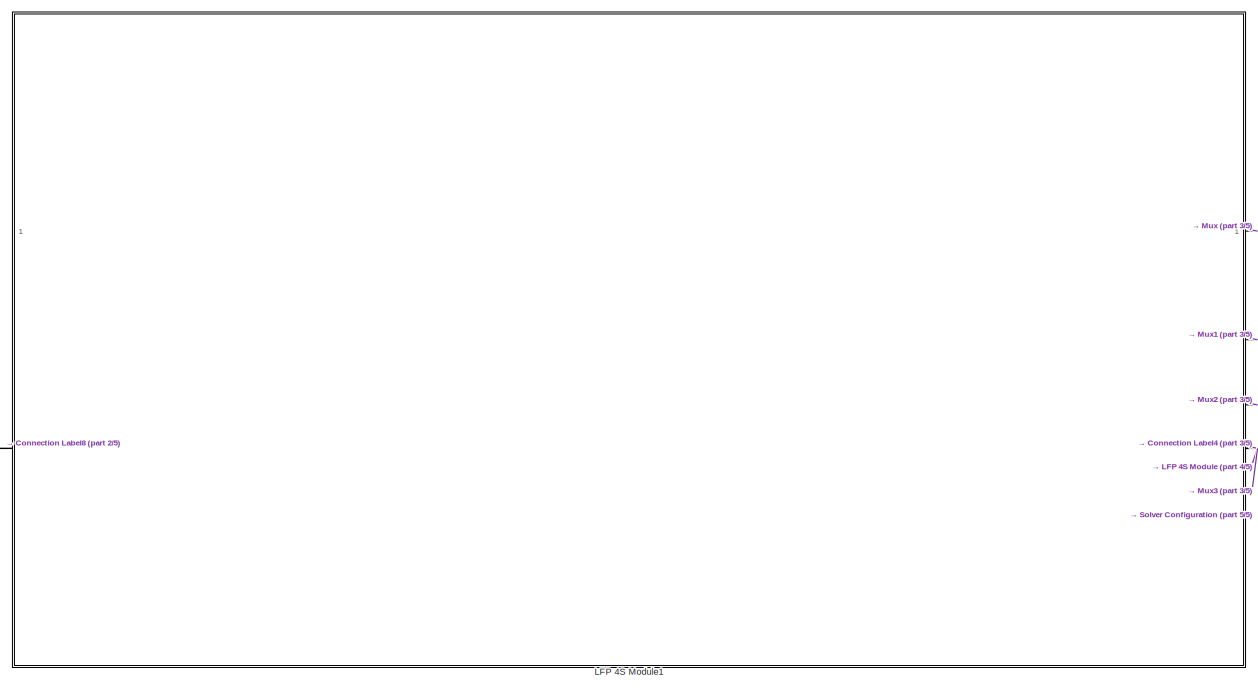
[diagram: root canvas - part 1/5, top center region]
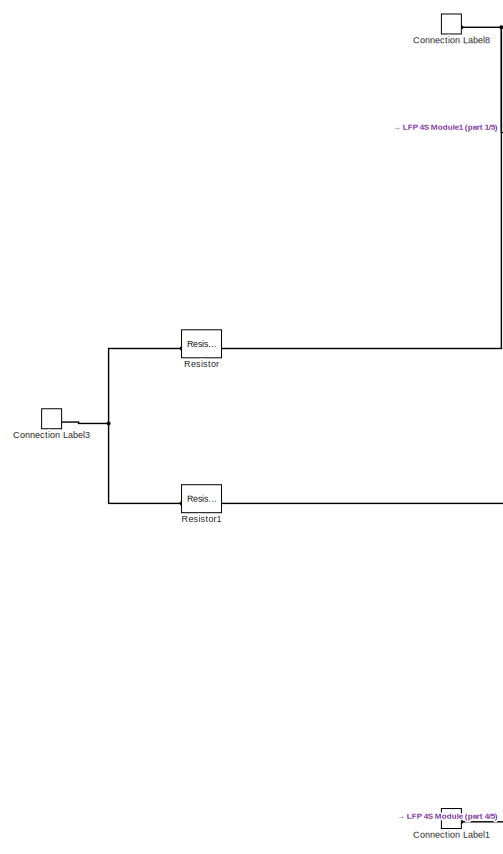
[diagram: root canvas - part 2/5, middle left region]
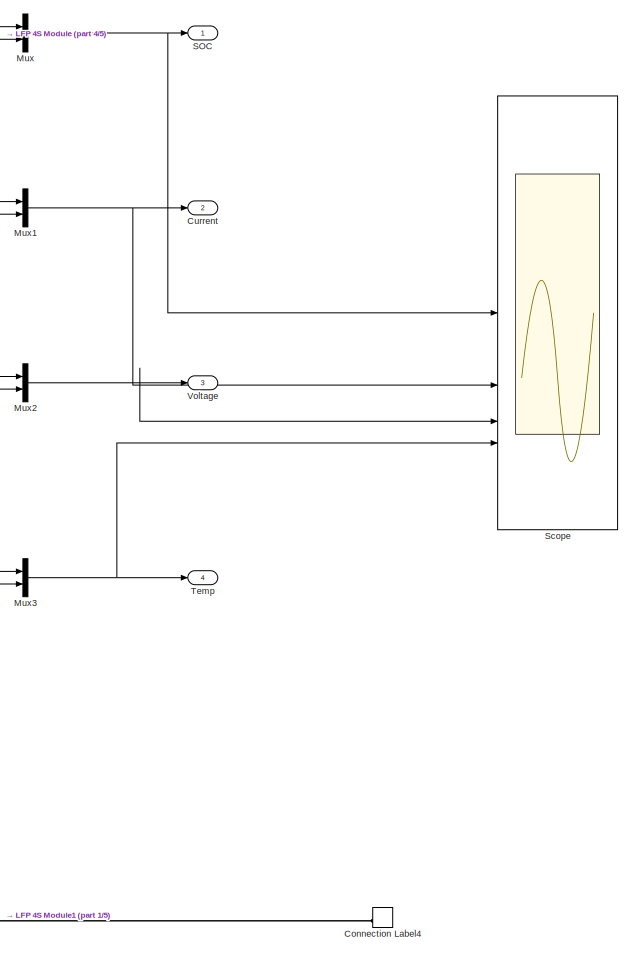
[diagram: root canvas - part 3/5, middle right region]
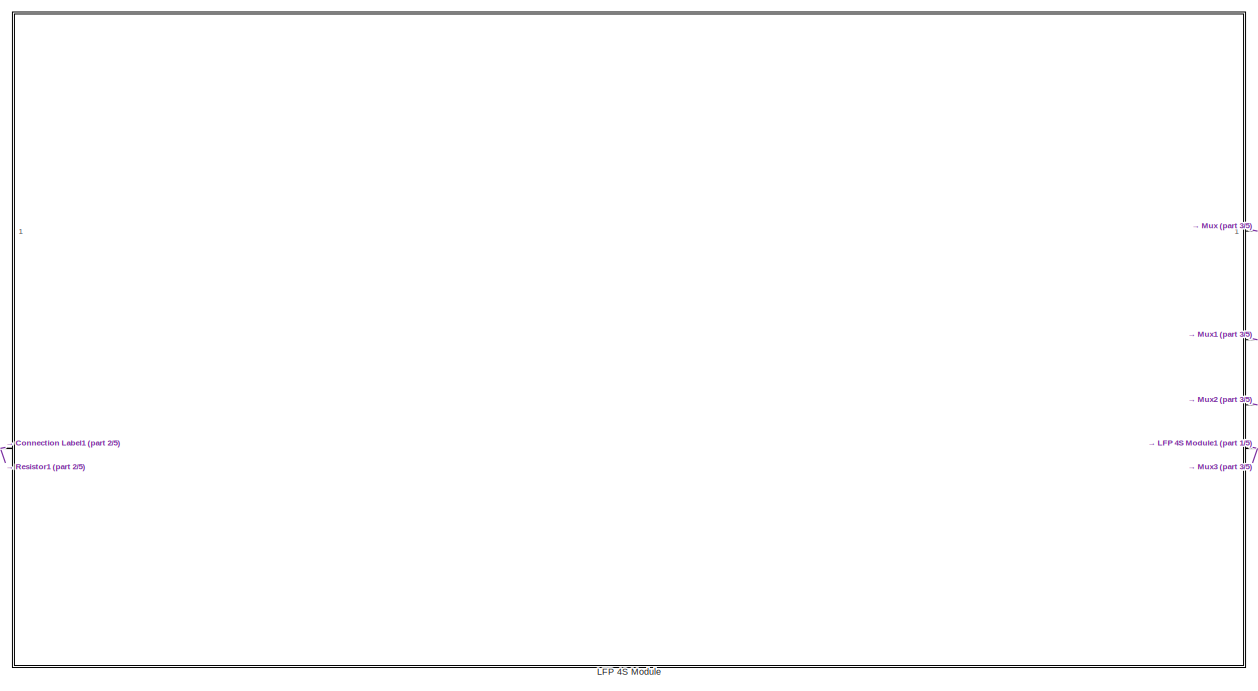
[diagram: root canvas - part 4/5, bottom center region]
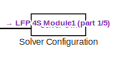
[diagram: root canvas - part 5/5, bottom right region]
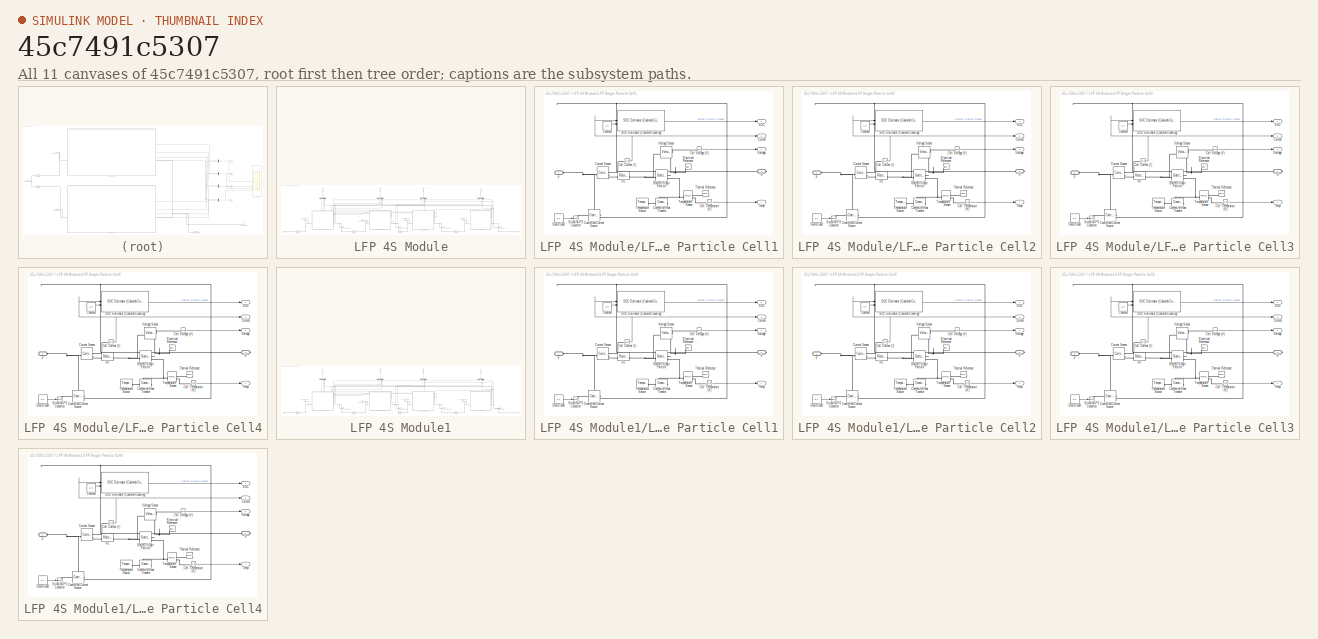
[diagram: thumbnail index - all 11 canvases of the model, root first then tree order]
MODEL slx_45c7491c5307
KIND model
CONFIG AbsTol = auto
CONFIG EnableMultiTasking = off
CONFIG FixedStep = auto
CONFIG MaxStep = auto
CONFIG MinStep = auto
CONFIG RelTol = 1e-3
CONFIG SampleTimeConstraint = Unconstrained
CONFIG SolverName = VariableStepAuto
CONFIG StartTime = 0.0
CONFIG StopTime = 10.0
BLOCK [ConnectionLabel] Connection Label1
  Label = p
BLOCK [ConnectionLabel] Connection Label3
  Label = p
BLOCK [ConnectionLabel] Connection Label4
  Label = n
BLOCK [ConnectionLabel] Connection Label8
  Label = p
BLOCK [Outport] Current
  Port = 2
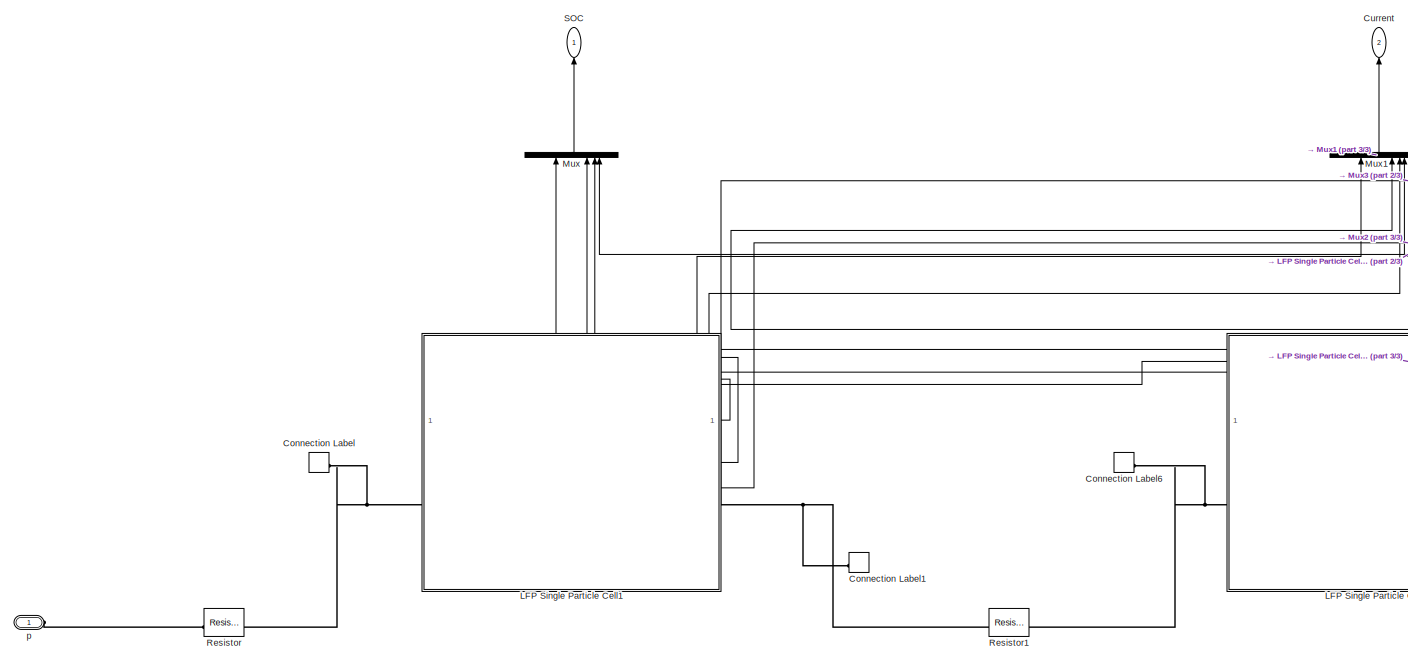
[diagram: LFP 4S Module - part 1/3, left side, full height]
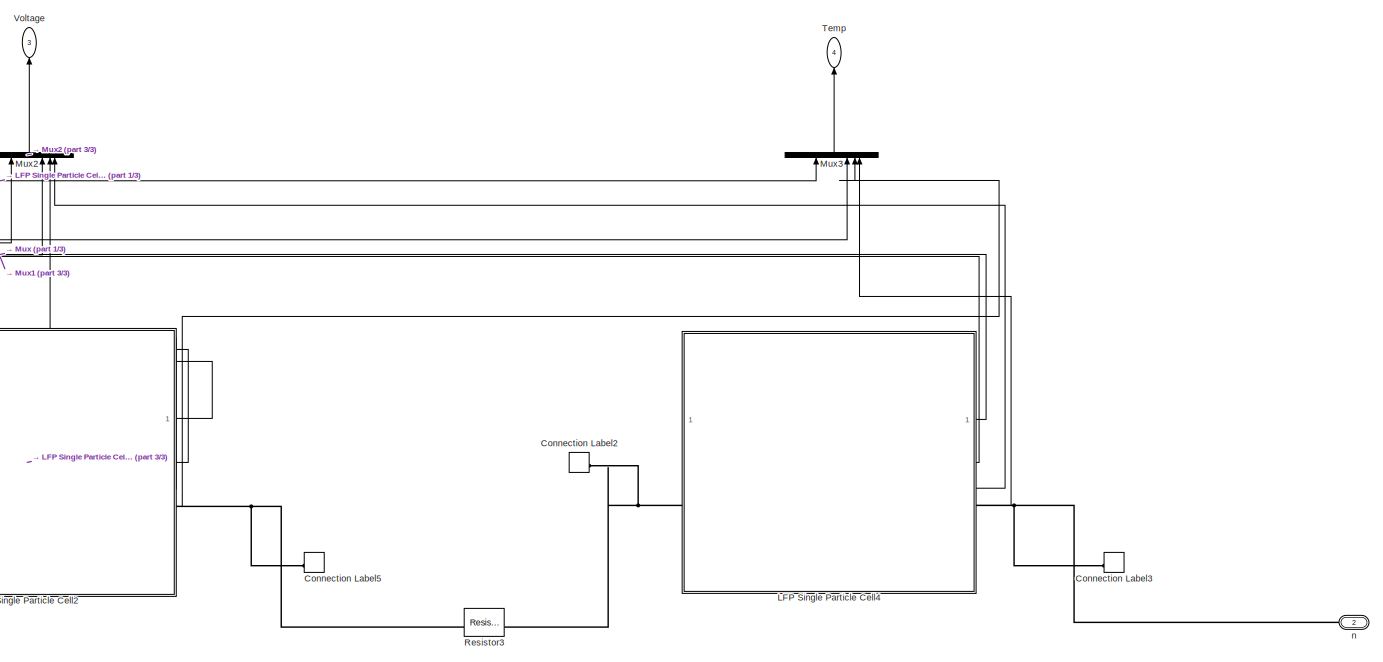
[diagram: LFP 4S Module - part 2/3, right side, full height]
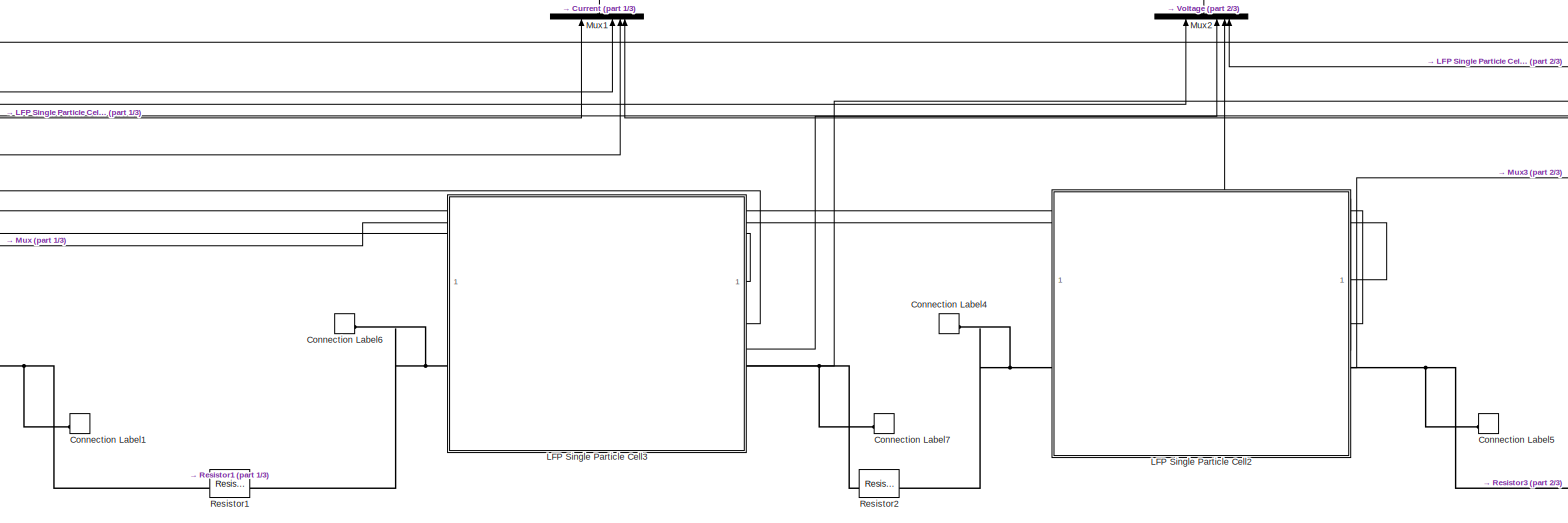
[diagram: LFP 4S Module - part 3/3, center side, full height]
BLOCK [SubSystem] LFP 4S Module
BLOCK [ConnectionLabel] LFP 4S Module/Connection Label
  Label = p
BLOCK [ConnectionLabel] LFP 4S Module/Connection Label1
  Label = n
BLOCK [ConnectionLabel] LFP 4S Module/Connection Label2
  Label = p
BLOCK [ConnectionLabel] LFP 4S Module/Connection Label3
  Label = n
BLOCK [ConnectionLabel] LFP 4S Module/Connection Label4
  Label = p
BLOCK [ConnectionLabel] LFP 4S Module/Connection Label5
  Label = n
BLOCK [ConnectionLabel] LFP 4S Module/Connection Label6
  Label = p
BLOCK [ConnectionLabel] LFP 4S Module/Connection Label7
  Label = n
BLOCK [Outport] LFP 4S Module/Current
  NameLocation = right
  Port = 2
BLOCK [SubSystem] LFP 4S Module/LFP Single Particle Cell1
BLOCK [Reference] LFP 4S Module/LFP Single Particle Cell1/Battery Single Particle  REF=batt_lib/Cells/Electrochemical/Battery Single
Particle
  NameLocation = top
  SourceBlock = batt_lib/Cells/Electrochemical/Battery Single\nParticle
  SourceType = Battery Single\nParticle
BLOCK [Reference] LFP 4S Module/LFP Single Particle Cell1/Cell Current (I)  REF=nesl_utility/PS-Simulink
Converter
  SourceBlock = nesl_utility/PS-Simulink\nConverter
  SourceType = PS-Simulink\nConverter
BLOCK [Reference] LFP 4S Module/LFP Single Particle Cell1/Cell Temperature (K)  REF=nesl_utility/PS-Simulink
Converter
  SourceBlock = nesl_utility/PS-Simulink\nConverter
  SourceType = PS-Simulink\nConverter
BLOCK [Reference] LFP 4S Module/LFP Single Particle Cell1/Cell Voltage (V)  REF=nesl_utility/PS-Simulink
Converter
  SourceBlock = nesl_utility/PS-Simulink\nConverter
  SourceType = PS-Simulink\nConverter
BLOCK [Constant] LFP 4S Module/LFP Single Particle Cell1/Constant
  Value = 0.9
BLOCK [Reference] LFP 4S Module/LFP Single Particle Cell1/Controlled Current Source  REF=fl_lib/Electrical/Electrical Sources/Controlled Current
Source
  SourceBlock = fl_lib/Electrical/Electrical Sources/Controlled Current\nSource
  SourceType = Controlled Current\nSource
BLOCK [Reference] LFP 4S Module/LFP Single Particle Cell1/Convective Heat Transfer  REF=fl_lib/Thermal/Thermal Elements/Convective Heat
Transfer
  NameLocation = top
  SourceBlock = fl_lib/Thermal/Thermal Elements/Convective Heat\nTransfer
  SourceType = Convective Heat\nTransfer
BLOCK [Outport] LFP 4S Module/LFP Single Particle Cell1/Current
  Port = 2
BLOCK [Reference] LFP 4S Module/LFP Single Particle Cell1/Current Sensor  REF=fl_lib/Electrical/Electrical Sensors/Current Sensor
  SourceBlock = fl_lib/Electrical/Electrical Sensors/Current Sensor
  SourceType = Current Sensor
BLOCK [Reference] LFP 4S Module/LFP Single Particle Cell1/Electrical Reference  REF=fl_lib/Electrical/Electrical Elements/Electrical Reference
  NameLocation = top
  SourceBlock = fl_lib/Electrical/Electrical Elements/Electrical Reference
  SourceType = Electrical Reference
BLOCK [Reference] LFP 4S Module/LFP Single Particle Cell1/Rs  REF=fl_lib/Electrical/Electrical Elements/Resistor
  SourceBlock = fl_lib/Electrical/Electrical Elements/Resistor
  SourceType = Resistor
BLOCK [Outport] LFP 4S Module/LFP Single Particle Cell1/SOC
BLOCK [Reference] LFP 4S Module/LFP Single Particle Cell1/SOC Estimator (Coulomb Counting)  REF=BatteryEstimators/SOC Estimator
(Coulomb Counting)
  LibrarySourceBlock = batt_sl_lib/Estimators/SOC Estimator\n(Coulomb Counting)
  SourceBlock = BatteryEstimators/SOC Estimator\n(Coulomb Counting)
  SourceType = SOC Estimator (Coulomb Counting)
BLOCK [Reference] LFP 4S Module/LFP Single Particle Cell1/Simulink-PS Converter  REF=nesl_utility/Simulink-PS
Converter
  SourceBlock = nesl_utility/Simulink-PS\nConverter
  SourceType = Simulink-PS\nConverter
BLOCK [Constant] LFP 4S Module/LFP Single Particle Cell1/Source Load
  Value = 0.3
BLOCK [Outport] LFP 4S Module/LFP Single Particle Cell1/Temp
  Port = 4
BLOCK [Reference] LFP 4S Module/LFP Single Particle Cell1/Temperature Sensor  REF=fl_lib/Thermal/Thermal Sensors/Temperature Sensor
  SourceBlock = fl_lib/Thermal/Thermal Sensors/Temperature Sensor
  SourceType = Temperature Sensor
BLOCK [Reference] LFP 4S Module/LFP Single Particle Cell1/Temperature Source  REF=fl_lib/Thermal/Thermal Sources/Temperature Source
  SourceBlock = fl_lib/Thermal/Thermal Sources/Temperature Source
  SourceType = Temperature Source
BLOCK [Reference] LFP 4S Module/LFP Single Particle Cell1/Thermal Reference  REF=fl_lib/Thermal/Thermal Elements/Thermal Reference
  NameLocation = top
  SourceBlock = fl_lib/Thermal/Thermal Elements/Thermal Reference
  SourceType = Thermal Reference
BLOCK [Outport] LFP 4S Module/LFP Single Particle Cell1/Voltage
  Port = 3
BLOCK [Reference] LFP 4S Module/LFP Single Particle Cell1/Voltage Sensor  REF=fl_lib/Electrical/Electrical Sensors/Voltage Sensor
  NameLocation = top
  SourceBlock = fl_lib/Electrical/Electrical Sensors/Voltage Sensor
  SourceType = Voltage Sensor
BLOCK [PMIOPort] LFP 4S Module/LFP Single Particle Cell1/n
  Port = 2
  Side = Right
BLOCK [PMIOPort] LFP 4S Module/LFP Single Particle Cell1/p
  Side = Left
BLOCK [SubSystem] LFP 4S Module/LFP Single Particle Cell2
BLOCK [Reference] LFP 4S Module/LFP Single Particle Cell2/Battery Single Particle  REF=batt_lib/Cells/Electrochemical/Battery Single
Particle
  NameLocation = top
  SourceBlock = batt_lib/Cells/Electrochemical/Battery Single\nParticle
  SourceType = Battery Single\nParticle
BLOCK [Reference] LFP 4S Module/LFP Single Particle Cell2/Cell Current (I)  REF=nesl_utility/PS-Simulink
Converter
  SourceBlock = nesl_utility/PS-Simulink\nConverter
  SourceType = PS-Simulink\nConverter
BLOCK [Reference] LFP 4S Module/LFP Single Particle Cell2/Cell Temperature (K)  REF=nesl_utility/PS-Simulink
Converter
  SourceBlock = nesl_utility/PS-Simulink\nConverter
  SourceType = PS-Simulink\nConverter
BLOCK [Reference] LFP 4S Module/LFP Single Particle Cell2/Cell Voltage (V)  REF=nesl_utility/PS-Simulink
Converter
  SourceBlock = nesl_utility/PS-Simulink\nConverter
  SourceType = PS-Simulink\nConverter
BLOCK [Constant] LFP 4S Module/LFP Single Particle Cell2/Constant
  Value = 0.9
BLOCK [Reference] LFP 4S Module/LFP Single Particle Cell2/Controlled Current Source  REF=fl_lib/Electrical/Electrical Sources/Controlled Current
Source
  SourceBlock = fl_lib/Electrical/Electrical Sources/Controlled Current\nSource
  SourceType = Controlled Current\nSource
BLOCK [Reference] LFP 4S Module/LFP Single Particle Cell2/Convective Heat Transfer  REF=fl_lib/Thermal/Thermal Elements/Convective Heat
Transfer
  NameLocation = top
  SourceBlock = fl_lib/Thermal/Thermal Elements/Convective Heat\nTransfer
  SourceType = Convective Heat\nTransfer
BLOCK [Outport] LFP 4S Module/LFP Single Particle Cell2/Current
  Port = 2
BLOCK [Reference] LFP 4S Module/LFP Single Particle Cell2/Current Sensor  REF=fl_lib/Electrical/Electrical Sensors/Current Sensor
  SourceBlock = fl_lib/Electrical/Electrical Sensors/Current Sensor
  SourceType = Current Sensor
BLOCK [Reference] LFP 4S Module/LFP Single Particle Cell2/Electrical Reference  REF=fl_lib/Electrical/Electrical Elements/Electrical Reference
  NameLocation = top
  SourceBlock = fl_lib/Electrical/Electrical Elements/Electrical Reference
  SourceType = Electrical Reference
BLOCK [Reference] LFP 4S Module/LFP Single Particle Cell2/Rs  REF=fl_lib/Electrical/Electrical Elements/Resistor
  SourceBlock = fl_lib/Electrical/Electrical Elements/Resistor
  SourceType = Resistor
BLOCK [Outport] LFP 4S Module/LFP Single Particle Cell2/SOC
BLOCK [Reference] LFP 4S Module/LFP Single Particle Cell2/SOC Estimator (Coulomb Counting)  REF=BatteryEstimators/SOC Estimator
(Coulomb Counting)
  LibrarySourceBlock = batt_sl_lib/Estimators/SOC Estimator\n(Coulomb Counting)
  SourceBlock = BatteryEstimators/SOC Estimator\n(Coulomb Counting)
  SourceType = SOC Estimator (Coulomb Counting)
BLOCK [Reference] LFP 4S Module/LFP Single Particle Cell2/Simulink-PS Converter  REF=nesl_utility/Simulink-PS
Converter
  SourceBlock = nesl_utility/Simulink-PS\nConverter
  SourceType = Simulink-PS\nConverter
BLOCK [Constant] LFP 4S Module/LFP Single Particle Cell2/Source Load
  Value = 0.3
BLOCK [Outport] LFP 4S Module/LFP Single Particle Cell2/Temp
  Port = 4
BLOCK [Reference] LFP 4S Module/LFP Single Particle Cell2/Temperature Sensor  REF=fl_lib/Thermal/Thermal Sensors/Temperature Sensor
  SourceBlock = fl_lib/Thermal/Thermal Sensors/Temperature Sensor
  SourceType = Temperature Sensor
BLOCK [Reference] LFP 4S Module/LFP Single Particle Cell2/Temperature Source  REF=fl_lib/Thermal/Thermal Sources/Temperature Source
  SourceBlock = fl_lib/Thermal/Thermal Sources/Temperature Source
  SourceType = Temperature Source
BLOCK [Reference] LFP 4S Module/LFP Single Particle Cell2/Thermal Reference  REF=fl_lib/Thermal/Thermal Elements/Thermal Reference
  NameLocation = top
  SourceBlock = fl_lib/Thermal/Thermal Elements/Thermal Reference
  SourceType = Thermal Reference
BLOCK [Outport] LFP 4S Module/LFP Single Particle Cell2/Voltage
  Port = 3
BLOCK [Reference] LFP 4S Module/LFP Single Particle Cell2/Voltage Sensor  REF=fl_lib/Electrical/Electrical Sensors/Voltage Sensor
  NameLocation = top
  SourceBlock = fl_lib/Electrical/Electrical Sensors/Voltage Sensor
  SourceType = Voltage Sensor
BLOCK [PMIOPort] LFP 4S Module/LFP Single Particle Cell2/n
  Port = 2
  Side = Right
BLOCK [PMIOPort] LFP 4S Module/LFP Single Particle Cell2/p
  Side = Left
BLOCK [SubSystem] LFP 4S Module/LFP Single Particle Cell3
BLOCK [Reference] LFP 4S Module/LFP Single Particle Cell3/Battery Single Particle  REF=batt_lib/Cells/Electrochemical/Battery Single
Particle
  NameLocation = top
  SourceBlock = batt_lib/Cells/Electrochemical/Battery Single\nParticle
  SourceType = Battery Single\nParticle
BLOCK [Reference] LFP 4S Module/LFP Single Particle Cell3/Cell Current (I)  REF=nesl_utility/PS-Simulink
Converter
  SourceBlock = nesl_utility/PS-Simulink\nConverter
  SourceType = PS-Simulink\nConverter
BLOCK [Reference] LFP 4S Module/LFP Single Particle Cell3/Cell Temperature (K)  REF=nesl_utility/PS-Simulink
Converter
  SourceBlock = nesl_utility/PS-Simulink\nConverter
  SourceType = PS-Simulink\nConverter
BLOCK [Reference] LFP 4S Module/LFP Single Particle Cell3/Cell Voltage (V)  REF=nesl_utility/PS-Simulink
Converter
  SourceBlock = nesl_utility/PS-Simulink\nConverter
  SourceType = PS-Simulink\nConverter
BLOCK [Constant] LFP 4S Module/LFP Single Particle Cell3/Constant
  Value = 0.9
BLOCK [Reference] LFP 4S Module/LFP Single Particle Cell3/Controlled Current Source  REF=fl_lib/Electrical/Electrical Sources/Controlled Current
Source
  SourceBlock = fl_lib/Electrical/Electrical Sources/Controlled Current\nSource
  SourceType = Controlled Current\nSource
BLOCK [Reference] LFP 4S Module/LFP Single Particle Cell3/Convective Heat Transfer  REF=fl_lib/Thermal/Thermal Elements/Convective Heat
Transfer
  NameLocation = top
  SourceBlock = fl_lib/Thermal/Thermal Elements/Convective Heat\nTransfer
  SourceType = Convective Heat\nTransfer
BLOCK [Outport] LFP 4S Module/LFP Single Particle Cell3/Current
  Port = 2
BLOCK [Reference] LFP 4S Module/LFP Single Particle Cell3/Current Sensor  REF=fl_lib/Electrical/Electrical Sensors/Current Sensor
  SourceBlock = fl_lib/Electrical/Electrical Sensors/Current Sensor
  SourceType = Current Sensor
BLOCK [Reference] LFP 4S Module/LFP Single Particle Cell3/Electrical Reference  REF=fl_lib/Electrical/Electrical Elements/Electrical Reference
  NameLocation = top
  SourceBlock = fl_lib/Electrical/Electrical Elements/Electrical Reference
  SourceType = Electrical Reference
BLOCK [Reference] LFP 4S Module/LFP Single Particle Cell3/Rs  REF=fl_lib/Electrical/Electrical Elements/Resistor
  SourceBlock = fl_lib/Electrical/Electrical Elements/Resistor
  SourceType = Resistor
BLOCK [Outport] LFP 4S Module/LFP Single Particle Cell3/SOC
BLOCK [Reference] LFP 4S Module/LFP Single Particle Cell3/SOC Estimator (Coulomb Counting)  REF=BatteryEstimators/SOC Estimator
(Coulomb Counting)
  LibrarySourceBlock = batt_sl_lib/Estimators/SOC Estimator\n(Coulomb Counting)
  SourceBlock = BatteryEstimators/SOC Estimator\n(Coulomb Counting)
  SourceType = SOC Estimator (Coulomb Counting)
BLOCK [Reference] LFP 4S Module/LFP Single Particle Cell3/Simulink-PS Converter  REF=nesl_utility/Simulink-PS
Converter
  SourceBlock = nesl_utility/Simulink-PS\nConverter
  SourceType = Simulink-PS\nConverter
BLOCK [Constant] LFP 4S Module/LFP Single Particle Cell3/Source Load
  Value = 0.3
BLOCK [Outport] LFP 4S Module/LFP Single Particle Cell3/Temp
  Port = 4
BLOCK [Reference] LFP 4S Module/LFP Single Particle Cell3/Temperature Sensor  REF=fl_lib/Thermal/Thermal Sensors/Temperature Sensor
  SourceBlock = fl_lib/Thermal/Thermal Sensors/Temperature Sensor
  SourceType = Temperature Sensor
BLOCK [Reference] LFP 4S Module/LFP Single Particle Cell3/Temperature Source  REF=fl_lib/Thermal/Thermal Sources/Temperature Source
  SourceBlock = fl_lib/Thermal/Thermal Sources/Temperature Source
  SourceType = Temperature Source
BLOCK [Reference] LFP 4S Module/LFP Single Particle Cell3/Thermal Reference  REF=fl_lib/Thermal/Thermal Elements/Thermal Reference
  NameLocation = top
  SourceBlock = fl_lib/Thermal/Thermal Elements/Thermal Reference
  SourceType = Thermal Reference
BLOCK [Outport] LFP 4S Module/LFP Single Particle Cell3/Voltage
  Port = 3
BLOCK [Reference] LFP 4S Module/LFP Single Particle Cell3/Voltage Sensor  REF=fl_lib/Electrical/Electrical Sensors/Voltage Sensor
  NameLocation = top
  SourceBlock = fl_lib/Electrical/Electrical Sensors/Voltage Sensor
  SourceType = Voltage Sensor
BLOCK [PMIOPort] LFP 4S Module/LFP Single Particle Cell3/n
  Port = 2
  Side = Right
BLOCK [PMIOPort] LFP 4S Module/LFP Single Particle Cell3/p
  Side = Left
BLOCK [SubSystem] LFP 4S Module/LFP Single Particle Cell4
BLOCK [Reference] LFP 4S Module/LFP Single Particle Cell4/Battery Single Particle  REF=batt_lib/Cells/Electrochemical/Battery Single
Particle
  NameLocation = top
  SourceBlock = batt_lib/Cells/Electrochemical/Battery Single\nParticle
  SourceType = Battery Single\nParticle
BLOCK [Reference] LFP 4S Module/LFP Single Particle Cell4/Cell Current (I)  REF=nesl_utility/PS-Simulink
Converter
  SourceBlock = nesl_utility/PS-Simulink\nConverter
  SourceType = PS-Simulink\nConverter
BLOCK [Reference] LFP 4S Module/LFP Single Particle Cell4/Cell Temperature (K)  REF=nesl_utility/PS-Simulink
Converter
  SourceBlock = nesl_utility/PS-Simulink\nConverter
  SourceType = PS-Simulink\nConverter
BLOCK [Reference] LFP 4S Module/LFP Single Particle Cell4/Cell Voltage (V)  REF=nesl_utility/PS-Simulink
Converter
  SourceBlock = nesl_utility/PS-Simulink\nConverter
  SourceType = PS-Simulink\nConverter
BLOCK [Constant] LFP 4S Module/LFP Single Particle Cell4/Constant
  Value = 0.9
BLOCK [Reference] LFP 4S Module/LFP Single Particle Cell4/Controlled Current Source  REF=fl_lib/Electrical/Electrical Sources/Controlled Current
Source
  SourceBlock = fl_lib/Electrical/Electrical Sources/Controlled Current\nSource
  SourceType = Controlled Current\nSource
BLOCK [Reference] LFP 4S Module/LFP Single Particle Cell4/Convective Heat Transfer  REF=fl_lib/Thermal/Thermal Elements/Convective Heat
Transfer
  NameLocation = top
  SourceBlock = fl_lib/Thermal/Thermal Elements/Convective Heat\nTransfer
  SourceType = Convective Heat\nTransfer
BLOCK [Outport] LFP 4S Module/LFP Single Particle Cell4/Current
  Port = 2
BLOCK [Reference] LFP 4S Module/LFP Single Particle Cell4/Current Sensor  REF=fl_lib/Electrical/Electrical Sensors/Current Sensor
  SourceBlock = fl_lib/Electrical/Electrical Sensors/Current Sensor
  SourceType = Current Sensor
BLOCK [Reference] LFP 4S Module/LFP Single Particle Cell4/Electrical Reference  REF=fl_lib/Electrical/Electrical Elements/Electrical Reference
  NameLocation = top
  SourceBlock = fl_lib/Electrical/Electrical Elements/Electrical Reference
  SourceType = Electrical Reference
BLOCK [Reference] LFP 4S Module/LFP Single Particle Cell4/Rs  REF=fl_lib/Electrical/Electrical Elements/Resistor
  SourceBlock = fl_lib/Electrical/Electrical Elements/Resistor
  SourceType = Resistor
BLOCK [Outport] LFP 4S Module/LFP Single Particle Cell4/SOC
BLOCK [Reference] LFP 4S Module/LFP Single Particle Cell4/SOC Estimator (Coulomb Counting)  REF=BatteryEstimators/SOC Estimator
(Coulomb Counting)
  LibrarySourceBlock = batt_sl_lib/Estimators/SOC Estimator\n(Coulomb Counting)
  SourceBlock = BatteryEstimators/SOC Estimator\n(Coulomb Counting)
  SourceType = SOC Estimator (Coulomb Counting)
BLOCK [Reference] LFP 4S Module/LFP Single Particle Cell4/Simulink-PS Converter  REF=nesl_utility/Simulink-PS
Converter
  SourceBlock = nesl_utility/Simulink-PS\nConverter
  SourceType = Simulink-PS\nConverter
BLOCK [Constant] LFP 4S Module/LFP Single Particle Cell4/Source Load
  Value = 0.3
BLOCK [Outport] LFP 4S Module/LFP Single Particle Cell4/Temp
  Port = 4
BLOCK [Reference] LFP 4S Module/LFP Single Particle Cell4/Temperature Sensor  REF=fl_lib/Thermal/Thermal Sensors/Temperature Sensor
  SourceBlock = fl_lib/Thermal/Thermal Sensors/Temperature Sensor
  SourceType = Temperature Sensor
BLOCK [Reference] LFP 4S Module/LFP Single Particle Cell4/Temperature Source  REF=fl_lib/Thermal/Thermal Sources/Temperature Source
  SourceBlock = fl_lib/Thermal/Thermal Sources/Temperature Source
  SourceType = Temperature Source
BLOCK [Reference] LFP 4S Module/LFP Single Particle Cell4/Thermal Reference  REF=fl_lib/Thermal/Thermal Elements/Thermal Reference
  NameLocation = top
  SourceBlock = fl_lib/Thermal/Thermal Elements/Thermal Reference
  SourceType = Thermal Reference
BLOCK [Outport] LFP 4S Module/LFP Single Particle Cell4/Voltage
  Port = 3
BLOCK [Reference] LFP 4S Module/LFP Single Particle Cell4/Voltage Sensor  REF=fl_lib/Electrical/Electrical Sensors/Voltage Sensor
  NameLocation = top
  SourceBlock = fl_lib/Electrical/Electrical Sensors/Voltage Sensor
  SourceType = Voltage Sensor
BLOCK [PMIOPort] LFP 4S Module/LFP Single Particle Cell4/n
  Port = 2
  Side = Right
BLOCK [PMIOPort] LFP 4S Module/LFP Single Particle Cell4/p
  Side = Left
BLOCK [Mux] LFP 4S Module/Mux
  DisplayOption = bar
  NameLocation = right
BLOCK [Mux] LFP 4S Module/Mux1
  DisplayOption = bar
  NameLocation = right
BLOCK [Mux] LFP 4S Module/Mux2
  DisplayOption = bar
  NameLocation = right
BLOCK [Mux] LFP 4S Module/Mux3
  DisplayOption = bar
  NameLocation = right
BLOCK [Reference] LFP 4S Module/Resistor  REF=ee_lib/Passive/Resistor
  SourceBlock = ee_lib/Passive/Resistor
  SourceType = Resistor
BLOCK [Reference] LFP 4S Module/Resistor1  REF=ee_lib/Passive/Resistor
  SourceBlock = ee_lib/Passive/Resistor
  SourceType = Resistor
BLOCK [Reference] LFP 4S Module/Resistor2  REF=ee_lib/Passive/Resistor
  SourceBlock = ee_lib/Passive/Resistor
  SourceType = Resistor
BLOCK [Reference] LFP 4S Module/Resistor3  REF=ee_lib/Passive/Resistor
  SourceBlock = ee_lib/Passive/Resistor
  SourceType = Resistor
BLOCK [Outport] LFP 4S Module/SOC
  NameLocation = right
BLOCK [Outport] LFP 4S Module/Temp
  NameLocation = right
  Port = 4
BLOCK [Outport] LFP 4S Module/Voltage
  NameLocation = right
  Port = 3
BLOCK [PMIOPort] LFP 4S Module/n
  Port = 2
  Side = Right
BLOCK [PMIOPort] LFP 4S Module/p
  Side = Left
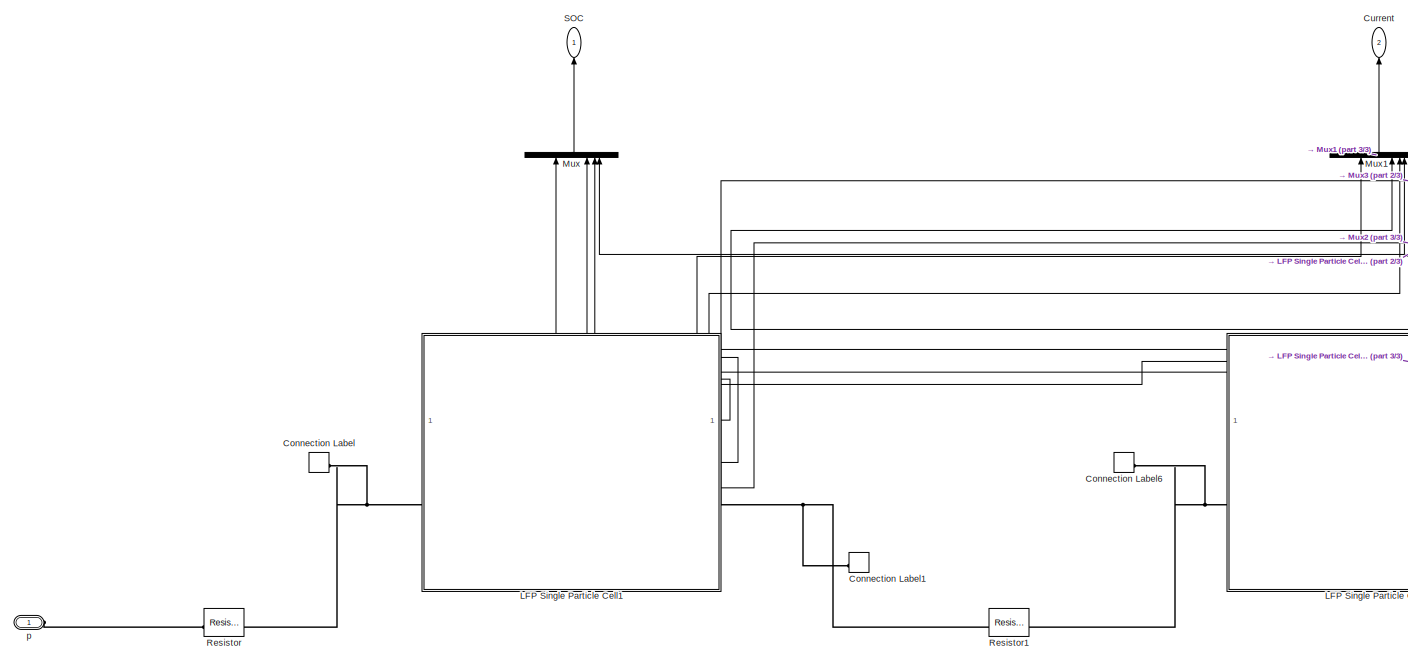
[diagram: LFP 4S Module1 - part 1/3, left side, full height]
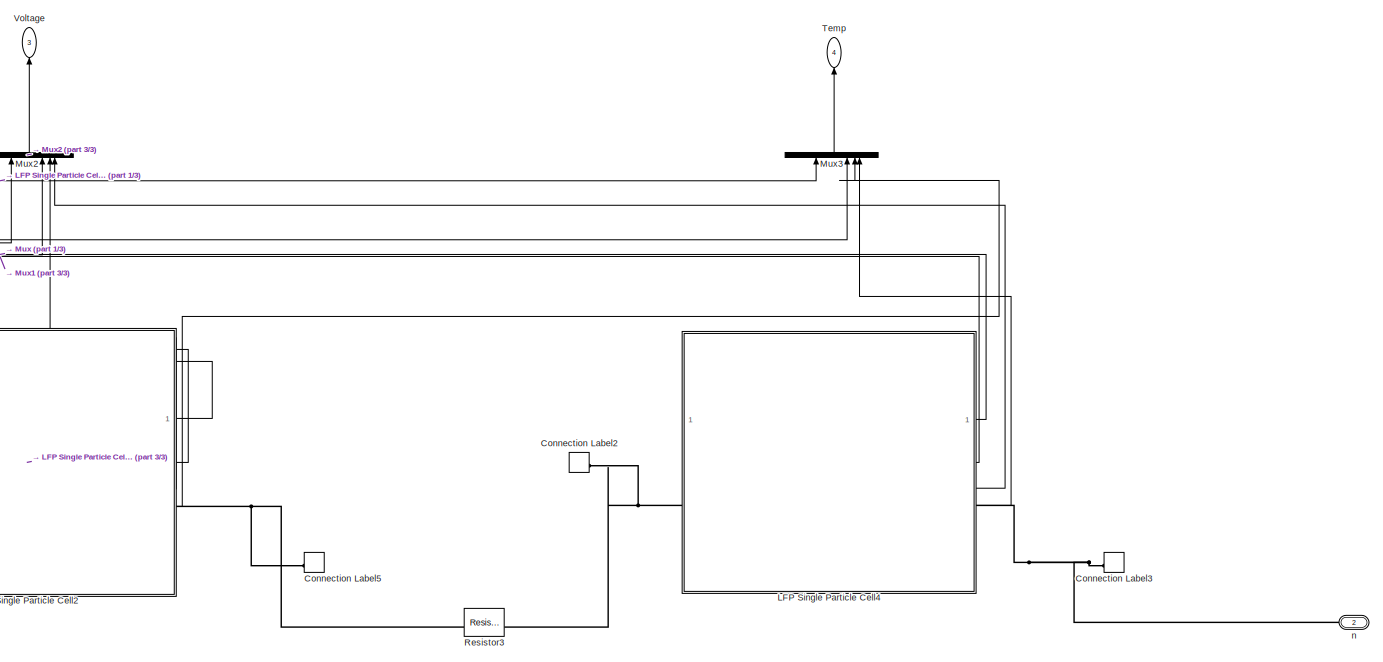
[diagram: LFP 4S Module1 - part 2/3, right side, full height]
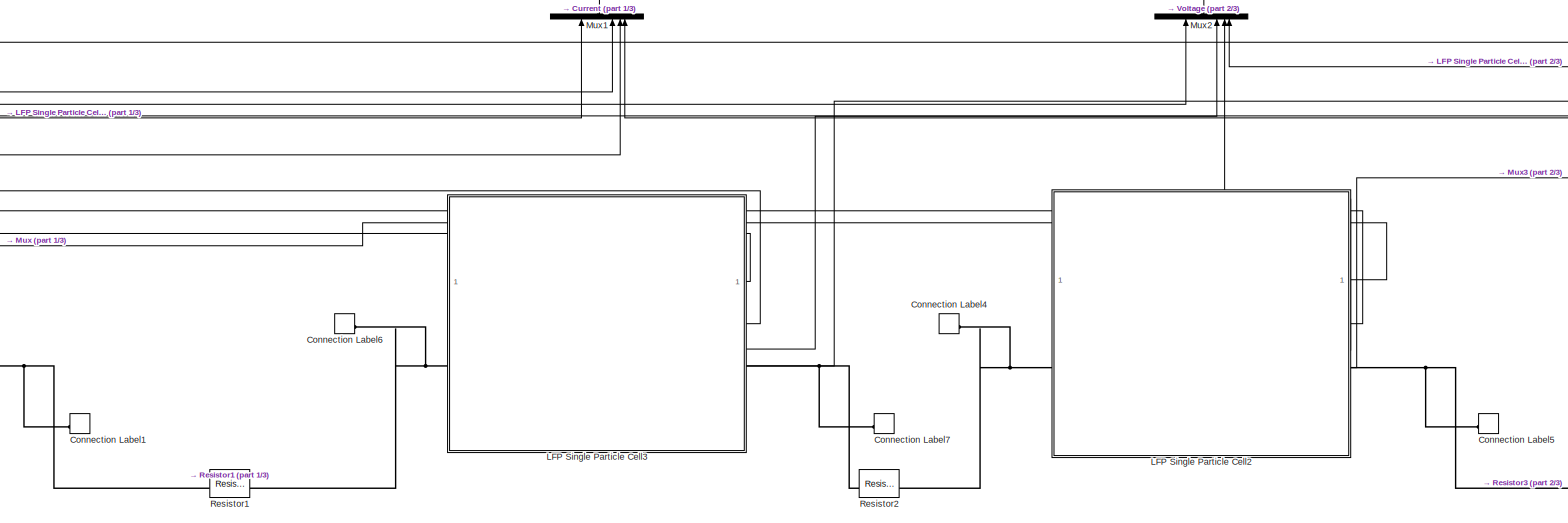
[diagram: LFP 4S Module1 - part 3/3, center side, full height]
BLOCK [SubSystem] LFP 4S Module1
BLOCK [ConnectionLabel] LFP 4S Module1/Connection Label
  Label = p
BLOCK [ConnectionLabel] LFP 4S Module1/Connection Label1
  Label = n
BLOCK [ConnectionLabel] LFP 4S Module1/Connection Label2
  Label = p
BLOCK [ConnectionLabel] LFP 4S Module1/Connection Label3
  Label = n
BLOCK [ConnectionLabel] LFP 4S Module1/Connection Label4
  Label = p
BLOCK [ConnectionLabel] LFP 4S Module1/Connection Label5
  Label = n
BLOCK [ConnectionLabel] LFP 4S Module1/Connection Label6
  Label = p
BLOCK [ConnectionLabel] LFP 4S Module1/Connection Label7
  Label = n
BLOCK [Outport] LFP 4S Module1/Current
  NameLocation = right
  Port = 2
BLOCK [SubSystem] LFP 4S Module1/LFP Single Particle Cell1
BLOCK [Reference] LFP 4S Module1/LFP Single Particle Cell1/Battery Single Particle  REF=batt_lib/Cells/Electrochemical/Battery Single
Particle
  NameLocation = top
  SourceBlock = batt_lib/Cells/Electrochemical/Battery Single\nParticle
  SourceType = Battery Single\nParticle
BLOCK [Reference] LFP 4S Module1/LFP Single Particle Cell1/Cell Current (I)  REF=nesl_utility/PS-Simulink
Converter
  SourceBlock = nesl_utility/PS-Simulink\nConverter
  SourceType = PS-Simulink\nConverter
BLOCK [Reference] LFP 4S Module1/LFP Single Particle Cell1/Cell Temperature (K)  REF=nesl_utility/PS-Simulink
Converter
  SourceBlock = nesl_utility/PS-Simulink\nConverter
  SourceType = PS-Simulink\nConverter
BLOCK [Reference] LFP 4S Module1/LFP Single Particle Cell1/Cell Voltage (V)  REF=nesl_utility/PS-Simulink
Converter
  SourceBlock = nesl_utility/PS-Simulink\nConverter
  SourceType = PS-Simulink\nConverter
BLOCK [Constant] LFP 4S Module1/LFP Single Particle Cell1/Constant
  Value = 0.9
BLOCK [Reference] LFP 4S Module1/LFP Single Particle Cell1/Controlled Current Source  REF=fl_lib/Electrical/Electrical Sources/Controlled Current
Source
  SourceBlock = fl_lib/Electrical/Electrical Sources/Controlled Current\nSource
  SourceType = Controlled Current\nSource
BLOCK [Reference] LFP 4S Module1/LFP Single Particle Cell1/Convective Heat Transfer  REF=fl_lib/Thermal/Thermal Elements/Convective Heat
Transfer
  NameLocation = top
  SourceBlock = fl_lib/Thermal/Thermal Elements/Convective Heat\nTransfer
  SourceType = Convective Heat\nTransfer
BLOCK [Outport] LFP 4S Module1/LFP Single Particle Cell1/Current
  Port = 2
BLOCK [Reference] LFP 4S Module1/LFP Single Particle Cell1/Current Sensor  REF=fl_lib/Electrical/Electrical Sensors/Current Sensor
  SourceBlock = fl_lib/Electrical/Electrical Sensors/Current Sensor
  SourceType = Current Sensor
BLOCK [Reference] LFP 4S Module1/LFP Single Particle Cell1/Electrical Reference  REF=fl_lib/Electrical/Electrical Elements/Electrical Reference
  NameLocation = top
  SourceBlock = fl_lib/Electrical/Electrical Elements/Electrical Reference
  SourceType = Electrical Reference
BLOCK [Reference] LFP 4S Module1/LFP Single Particle Cell1/Rs  REF=fl_lib/Electrical/Electrical Elements/Resistor
  SourceBlock = fl_lib/Electrical/Electrical Elements/Resistor
  SourceType = Resistor
BLOCK [Outport] LFP 4S Module1/LFP Single Particle Cell1/SOC
BLOCK [Reference] LFP 4S Module1/LFP Single Particle Cell1/SOC Estimator (Coulomb Counting)  REF=BatteryEstimators/SOC Estimator
(Coulomb Counting)
  LibrarySourceBlock = batt_sl_lib/Estimators/SOC Estimator\n(Coulomb Counting)
  SourceBlock = BatteryEstimators/SOC Estimator\n(Coulomb Counting)
  SourceType = SOC Estimator (Coulomb Counting)
BLOCK [Reference] LFP 4S Module1/LFP Single Particle Cell1/Simulink-PS Converter  REF=nesl_utility/Simulink-PS
Converter
  SourceBlock = nesl_utility/Simulink-PS\nConverter
  SourceType = Simulink-PS\nConverter
BLOCK [Constant] LFP 4S Module1/LFP Single Particle Cell1/Source Load
  Value = 0.3
BLOCK [Outport] LFP 4S Module1/LFP Single Particle Cell1/Temp
  Port = 4
BLOCK [Reference] LFP 4S Module1/LFP Single Particle Cell1/Temperature Sensor  REF=fl_lib/Thermal/Thermal Sensors/Temperature Sensor
  SourceBlock = fl_lib/Thermal/Thermal Sensors/Temperature Sensor
  SourceType = Temperature Sensor
BLOCK [Reference] LFP 4S Module1/LFP Single Particle Cell1/Temperature Source  REF=fl_lib/Thermal/Thermal Sources/Temperature Source
  SourceBlock = fl_lib/Thermal/Thermal Sources/Temperature Source
  SourceType = Temperature Source
BLOCK [Reference] LFP 4S Module1/LFP Single Particle Cell1/Thermal Reference  REF=fl_lib/Thermal/Thermal Elements/Thermal Reference
  NameLocation = top
  SourceBlock = fl_lib/Thermal/Thermal Elements/Thermal Reference
  SourceType = Thermal Reference
BLOCK [Outport] LFP 4S Module1/LFP Single Particle Cell1/Voltage
  Port = 3
BLOCK [Reference] LFP 4S Module1/LFP Single Particle Cell1/Voltage Sensor  REF=fl_lib/Electrical/Electrical Sensors/Voltage Sensor
  NameLocation = top
  SourceBlock = fl_lib/Electrical/Electrical Sensors/Voltage Sensor
  SourceType = Voltage Sensor
BLOCK [PMIOPort] LFP 4S Module1/LFP Single Particle Cell1/n
  Port = 2
  Side = Right
BLOCK [PMIOPort] LFP 4S Module1/LFP Single Particle Cell1/p
  Side = Left
BLOCK [SubSystem] LFP 4S Module1/LFP Single Particle Cell2
BLOCK [Reference] LFP 4S Module1/LFP Single Particle Cell2/Battery Single Particle  REF=batt_lib/Cells/Electrochemical/Battery Single
Particle
  NameLocation = top
  SourceBlock = batt_lib/Cells/Electrochemical/Battery Single\nParticle
  SourceType = Battery Single\nParticle
BLOCK [Reference] LFP 4S Module1/LFP Single Particle Cell2/Cell Current (I)  REF=nesl_utility/PS-Simulink
Converter
  SourceBlock = nesl_utility/PS-Simulink\nConverter
  SourceType = PS-Simulink\nConverter
BLOCK [Reference] LFP 4S Module1/LFP Single Particle Cell2/Cell Temperature (K)  REF=nesl_utility/PS-Simulink
Converter
  SourceBlock = nesl_utility/PS-Simulink\nConverter
  SourceType = PS-Simulink\nConverter
BLOCK [Reference] LFP 4S Module1/LFP Single Particle Cell2/Cell Voltage (V)  REF=nesl_utility/PS-Simulink
Converter
  SourceBlock = nesl_utility/PS-Simulink\nConverter
  SourceType = PS-Simulink\nConverter
BLOCK [Constant] LFP 4S Module1/LFP Single Particle Cell2/Constant
  Value = 0.9
BLOCK [Reference] LFP 4S Module1/LFP Single Particle Cell2/Controlled Current Source  REF=fl_lib/Electrical/Electrical Sources/Controlled Current
Source
  SourceBlock = fl_lib/Electrical/Electrical Sources/Controlled Current\nSource
  SourceType = Controlled Current\nSource
BLOCK [Reference] LFP 4S Module1/LFP Single Particle Cell2/Convective Heat Transfer  REF=fl_lib/Thermal/Thermal Elements/Convective Heat
Transfer
  NameLocation = top
  SourceBlock = fl_lib/Thermal/Thermal Elements/Convective Heat\nTransfer
  SourceType = Convective Heat\nTransfer
BLOCK [Outport] LFP 4S Module1/LFP Single Particle Cell2/Current
  Port = 2
BLOCK [Reference] LFP 4S Module1/LFP Single Particle Cell2/Current Sensor  REF=fl_lib/Electrical/Electrical Sensors/Current Sensor
  SourceBlock = fl_lib/Electrical/Electrical Sensors/Current Sensor
  SourceType = Current Sensor
BLOCK [Reference] LFP 4S Module1/LFP Single Particle Cell2/Electrical Reference  REF=fl_lib/Electrical/Electrical Elements/Electrical Reference
  NameLocation = top
  SourceBlock = fl_lib/Electrical/Electrical Elements/Electrical Reference
  SourceType = Electrical Reference
BLOCK [Reference] LFP 4S Module1/LFP Single Particle Cell2/Rs  REF=fl_lib/Electrical/Electrical Elements/Resistor
  SourceBlock = fl_lib/Electrical/Electrical Elements/Resistor
  SourceType = Resistor
BLOCK [Outport] LFP 4S Module1/LFP Single Particle Cell2/SOC
BLOCK [Reference] LFP 4S Module1/LFP Single Particle Cell2/SOC Estimator (Coulomb Counting)  REF=BatteryEstimators/SOC Estimator
(Coulomb Counting)
  LibrarySourceBlock = batt_sl_lib/Estimators/SOC Estimator\n(Coulomb Counting)
  SourceBlock = BatteryEstimators/SOC Estimator\n(Coulomb Counting)
  SourceType = SOC Estimator (Coulomb Counting)
BLOCK [Reference] LFP 4S Module1/LFP Single Particle Cell2/Simulink-PS Converter  REF=nesl_utility/Simulink-PS
Converter
  SourceBlock = nesl_utility/Simulink-PS\nConverter
  SourceType = Simulink-PS\nConverter
BLOCK [Constant] LFP 4S Module1/LFP Single Particle Cell2/Source Load
  Value = 0.3
BLOCK [Outport] LFP 4S Module1/LFP Single Particle Cell2/Temp
  Port = 4
BLOCK [Reference] LFP 4S Module1/LFP Single Particle Cell2/Temperature Sensor  REF=fl_lib/Thermal/Thermal Sensors/Temperature Sensor
  SourceBlock = fl_lib/Thermal/Thermal Sensors/Temperature Sensor
  SourceType = Temperature Sensor
BLOCK [Reference] LFP 4S Module1/LFP Single Particle Cell2/Temperature Source  REF=fl_lib/Thermal/Thermal Sources/Temperature Source
  SourceBlock = fl_lib/Thermal/Thermal Sources/Temperature Source
  SourceType = Temperature Source
BLOCK [Reference] LFP 4S Module1/LFP Single Particle Cell2/Thermal Reference  REF=fl_lib/Thermal/Thermal Elements/Thermal Reference
  NameLocation = top
  SourceBlock = fl_lib/Thermal/Thermal Elements/Thermal Reference
  SourceType = Thermal Reference
BLOCK [Outport] LFP 4S Module1/LFP Single Particle Cell2/Voltage
  Port = 3
BLOCK [Reference] LFP 4S Module1/LFP Single Particle Cell2/Voltage Sensor  REF=fl_lib/Electrical/Electrical Sensors/Voltage Sensor
  NameLocation = top
  SourceBlock = fl_lib/Electrical/Electrical Sensors/Voltage Sensor
  SourceType = Voltage Sensor
BLOCK [PMIOPort] LFP 4S Module1/LFP Single Particle Cell2/n
  Port = 2
  Side = Right
BLOCK [PMIOPort] LFP 4S Module1/LFP Single Particle Cell2/p
  Side = Left
BLOCK [SubSystem] LFP 4S Module1/LFP Single Particle Cell3
BLOCK [Reference] LFP 4S Module1/LFP Single Particle Cell3/Battery Single Particle  REF=batt_lib/Cells/Electrochemical/Battery Single
Particle
  NameLocation = top
  SourceBlock = batt_lib/Cells/Electrochemical/Battery Single\nParticle
  SourceType = Battery Single\nParticle
BLOCK [Reference] LFP 4S Module1/LFP Single Particle Cell3/Cell Current (I)  REF=nesl_utility/PS-Simulink
Converter
  SourceBlock = nesl_utility/PS-Simulink\nConverter
  SourceType = PS-Simulink\nConverter
BLOCK [Reference] LFP 4S Module1/LFP Single Particle Cell3/Cell Temperature (K)  REF=nesl_utility/PS-Simulink
Converter
  SourceBlock = nesl_utility/PS-Simulink\nConverter
  SourceType = PS-Simulink\nConverter
BLOCK [Reference] LFP 4S Module1/LFP Single Particle Cell3/Cell Voltage (V)  REF=nesl_utility/PS-Simulink
Converter
  SourceBlock = nesl_utility/PS-Simulink\nConverter
  SourceType = PS-Simulink\nConverter
BLOCK [Constant] LFP 4S Module1/LFP Single Particle Cell3/Constant
  Value = 0.9
BLOCK [Reference] LFP 4S Module1/LFP Single Particle Cell3/Controlled Current Source  REF=fl_lib/Electrical/Electrical Sources/Controlled Current
Source
  SourceBlock = fl_lib/Electrical/Electrical Sources/Controlled Current\nSource
  SourceType = Controlled Current\nSource
BLOCK [Reference] LFP 4S Module1/LFP Single Particle Cell3/Convective Heat Transfer  REF=fl_lib/Thermal/Thermal Elements/Convective Heat
Transfer
  NameLocation = top
  SourceBlock = fl_lib/Thermal/Thermal Elements/Convective Heat\nTransfer
  SourceType = Convective Heat\nTransfer
BLOCK [Outport] LFP 4S Module1/LFP Single Particle Cell3/Current
  Port = 2
BLOCK [Reference] LFP 4S Module1/LFP Single Particle Cell3/Current Sensor  REF=fl_lib/Electrical/Electrical Sensors/Current Sensor
  SourceBlock = fl_lib/Electrical/Electrical Sensors/Current Sensor
  SourceType = Current Sensor
BLOCK [Reference] LFP 4S Module1/LFP Single Particle Cell3/Electrical Reference  REF=fl_lib/Electrical/Electrical Elements/Electrical Reference
  NameLocation = top
  SourceBlock = fl_lib/Electrical/Electrical Elements/Electrical Reference
  SourceType = Electrical Reference
BLOCK [Reference] LFP 4S Module1/LFP Single Particle Cell3/Rs  REF=fl_lib/Electrical/Electrical Elements/Resistor
  SourceBlock = fl_lib/Electrical/Electrical Elements/Resistor
  SourceType = Resistor
BLOCK [Outport] LFP 4S Module1/LFP Single Particle Cell3/SOC
BLOCK [Reference] LFP 4S Module1/LFP Single Particle Cell3/SOC Estimator (Coulomb Counting)  REF=BatteryEstimators/SOC Estimator
(Coulomb Counting)
  LibrarySourceBlock = batt_sl_lib/Estimators/SOC Estimator\n(Coulomb Counting)
  SourceBlock = BatteryEstimators/SOC Estimator\n(Coulomb Counting)
  SourceType = SOC Estimator (Coulomb Counting)
BLOCK [Reference] LFP 4S Module1/LFP Single Particle Cell3/Simulink-PS Converter  REF=nesl_utility/Simulink-PS
Converter
  SourceBlock = nesl_utility/Simulink-PS\nConverter
  SourceType = Simulink-PS\nConverter
BLOCK [Constant] LFP 4S Module1/LFP Single Particle Cell3/Source Load
  Value = 0.3
BLOCK [Outport] LFP 4S Module1/LFP Single Particle Cell3/Temp
  Port = 4
BLOCK [Reference] LFP 4S Module1/LFP Single Particle Cell3/Temperature Sensor  REF=fl_lib/Thermal/Thermal Sensors/Temperature Sensor
  SourceBlock = fl_lib/Thermal/Thermal Sensors/Temperature Sensor
  SourceType = Temperature Sensor
BLOCK [Reference] LFP 4S Module1/LFP Single Particle Cell3/Temperature Source  REF=fl_lib/Thermal/Thermal Sources/Temperature Source
  SourceBlock = fl_lib/Thermal/Thermal Sources/Temperature Source
  SourceType = Temperature Source
BLOCK [Reference] LFP 4S Module1/LFP Single Particle Cell3/Thermal Reference  REF=fl_lib/Thermal/Thermal Elements/Thermal Reference
  NameLocation = top
  SourceBlock = fl_lib/Thermal/Thermal Elements/Thermal Reference
  SourceType = Thermal Reference
BLOCK [Outport] LFP 4S Module1/LFP Single Particle Cell3/Voltage
  Port = 3
BLOCK [Reference] LFP 4S Module1/LFP Single Particle Cell3/Voltage Sensor  REF=fl_lib/Electrical/Electrical Sensors/Voltage Sensor
  NameLocation = top
  SourceBlock = fl_lib/Electrical/Electrical Sensors/Voltage Sensor
  SourceType = Voltage Sensor
BLOCK [PMIOPort] LFP 4S Module1/LFP Single Particle Cell3/n
  Port = 2
  Side = Right
BLOCK [PMIOPort] LFP 4S Module1/LFP Single Particle Cell3/p
  Side = Left
BLOCK [SubSystem] LFP 4S Module1/LFP Single Particle Cell4
BLOCK [Reference] LFP 4S Module1/LFP Single Particle Cell4/Battery Single Particle  REF=batt_lib/Cells/Electrochemical/Battery Single
Particle
  NameLocation = top
  SourceBlock = batt_lib/Cells/Electrochemical/Battery Single\nParticle
  SourceType = Battery Single\nParticle
BLOCK [Reference] LFP 4S Module1/LFP Single Particle Cell4/Cell Current (I)  REF=nesl_utility/PS-Simulink
Converter
  SourceBlock = nesl_utility/PS-Simulink\nConverter
  SourceType = PS-Simulink\nConverter
BLOCK [Reference] LFP 4S Module1/LFP Single Particle Cell4/Cell Temperature (K)  REF=nesl_utility/PS-Simulink
Converter
  SourceBlock = nesl_utility/PS-Simulink\nConverter
  SourceType = PS-Simulink\nConverter
BLOCK [Reference] LFP 4S Module1/LFP Single Particle Cell4/Cell Voltage (V)  REF=nesl_utility/PS-Simulink
Converter
  SourceBlock = nesl_utility/PS-Simulink\nConverter
  SourceType = PS-Simulink\nConverter
BLOCK [Constant] LFP 4S Module1/LFP Single Particle Cell4/Constant
  Value = 0.9
BLOCK [Reference] LFP 4S Module1/LFP Single Particle Cell4/Controlled Current Source  REF=fl_lib/Electrical/Electrical Sources/Controlled Current
Source
  SourceBlock = fl_lib/Electrical/Electrical Sources/Controlled Current\nSource
  SourceType = Controlled Current\nSource
BLOCK [Reference] LFP 4S Module1/LFP Single Particle Cell4/Convective Heat Transfer  REF=fl_lib/Thermal/Thermal Elements/Convective Heat
Transfer
  NameLocation = top
  SourceBlock = fl_lib/Thermal/Thermal Elements/Convective Heat\nTransfer
  SourceType = Convective Heat\nTransfer
BLOCK [Outport] LFP 4S Module1/LFP Single Particle Cell4/Current
  Port = 2
BLOCK [Reference] LFP 4S Module1/LFP Single Particle Cell4/Current Sensor  REF=fl_lib/Electrical/Electrical Sensors/Current Sensor
  SourceBlock = fl_lib/Electrical/Electrical Sensors/Current Sensor
  SourceType = Current Sensor
BLOCK [Reference] LFP 4S Module1/LFP Single Particle Cell4/Electrical Reference  REF=fl_lib/Electrical/Electrical Elements/Electrical Reference
  NameLocation = top
  SourceBlock = fl_lib/Electrical/Electrical Elements/Electrical Reference
  SourceType = Electrical Reference
BLOCK [Reference] LFP 4S Module1/LFP Single Particle Cell4/Rs  REF=fl_lib/Electrical/Electrical Elements/Resistor
  SourceBlock = fl_lib/Electrical/Electrical Elements/Resistor
  SourceType = Resistor
BLOCK [Outport] LFP 4S Module1/LFP Single Particle Cell4/SOC
BLOCK [Reference] LFP 4S Module1/LFP Single Particle Cell4/SOC Estimator (Coulomb Counting)  REF=BatteryEstimators/SOC Estimator
(Coulomb Counting)
  LibrarySourceBlock = batt_sl_lib/Estimators/SOC Estimator\n(Coulomb Counting)
  SourceBlock = BatteryEstimators/SOC Estimator\n(Coulomb Counting)
  SourceType = SOC Estimator (Coulomb Counting)
BLOCK [Reference] LFP 4S Module1/LFP Single Particle Cell4/Simulink-PS Converter  REF=nesl_utility/Simulink-PS
Converter
  SourceBlock = nesl_utility/Simulink-PS\nConverter
  SourceType = Simulink-PS\nConverter
BLOCK [Constant] LFP 4S Module1/LFP Single Particle Cell4/Source Load
  Value = 0.3
BLOCK [Outport] LFP 4S Module1/LFP Single Particle Cell4/Temp
  Port = 4
BLOCK [Reference] LFP 4S Module1/LFP Single Particle Cell4/Temperature Sensor  REF=fl_lib/Thermal/Thermal Sensors/Temperature Sensor
  SourceBlock = fl_lib/Thermal/Thermal Sensors/Temperature Sensor
  SourceType = Temperature Sensor
BLOCK [Reference] LFP 4S Module1/LFP Single Particle Cell4/Temperature Source  REF=fl_lib/Thermal/Thermal Sources/Temperature Source
  SourceBlock = fl_lib/Thermal/Thermal Sources/Temperature Source
  SourceType = Temperature Source
BLOCK [Reference] LFP 4S Module1/LFP Single Particle Cell4/Thermal Reference  REF=fl_lib/Thermal/Thermal Elements/Thermal Reference
  NameLocation = top
  SourceBlock = fl_lib/Thermal/Thermal Elements/Thermal Reference
  SourceType = Thermal Reference
BLOCK [Outport] LFP 4S Module1/LFP Single Particle Cell4/Voltage
  Port = 3
BLOCK [Reference] LFP 4S Module1/LFP Single Particle Cell4/Voltage Sensor  REF=fl_lib/Electrical/Electrical Sensors/Voltage Sensor
  NameLocation = top
  SourceBlock = fl_lib/Electrical/Electrical Sensors/Voltage Sensor
  SourceType = Voltage Sensor
BLOCK [PMIOPort] LFP 4S Module1/LFP Single Particle Cell4/n
  Port = 2
  Side = Right
BLOCK [PMIOPort] LFP 4S Module1/LFP Single Particle Cell4/p
  Side = Left
BLOCK [Mux] LFP 4S Module1/Mux
  DisplayOption = bar
  NameLocation = right
BLOCK [Mux] LFP 4S Module1/Mux1
  DisplayOption = bar
  NameLocation = right
BLOCK [Mux] LFP 4S Module1/Mux2
  DisplayOption = bar
  NameLocation = right
BLOCK [Mux] LFP 4S Module1/Mux3
  DisplayOption = bar
  NameLocation = right
BLOCK [Reference] LFP 4S Module1/Resistor  REF=ee_lib/Passive/Resistor
  SourceBlock = ee_lib/Passive/Resistor
  SourceType = Resistor
BLOCK [Reference] LFP 4S Module1/Resistor1  REF=ee_lib/Passive/Resistor
  SourceBlock = ee_lib/Passive/Resistor
  SourceType = Resistor
BLOCK [Reference] LFP 4S Module1/Resistor2  REF=ee_lib/Passive/Resistor
  SourceBlock = ee_lib/Passive/Resistor
  SourceType = Resistor
BLOCK [Reference] LFP 4S Module1/Resistor3  REF=ee_lib/Passive/Resistor
  SourceBlock = ee_lib/Passive/Resistor
  SourceType = Resistor
BLOCK [Outport] LFP 4S Module1/SOC
  NameLocation = right
BLOCK [Outport] LFP 4S Module1/Temp
  NameLocation = right
  Port = 4
BLOCK [Outport] LFP 4S Module1/Voltage
  NameLocation = right
  Port = 3
BLOCK [PMIOPort] LFP 4S Module1/n
  Port = 2
  Side = Right
BLOCK [PMIOPort] LFP 4S Module1/p
  Side = Left
BLOCK [Mux] Mux
  DisplayOption = bar
  Inputs = 2
BLOCK [Mux] Mux1
  DisplayOption = bar
  Inputs = 2
BLOCK [Mux] Mux2
  DisplayOption = bar
  Inputs = 2
BLOCK [Mux] Mux3
  DisplayOption = bar
  Inputs = 2
BLOCK [Reference] Resistor  REF=fl_lib/Electrical/Electrical Elements/Resistor
  SourceBlock = fl_lib/Electrical/Electrical Elements/Resistor
  SourceType = Resistor
BLOCK [Reference] Resistor1  REF=fl_lib/Electrical/Electrical Elements/Resistor
  SourceBlock = fl_lib/Electrical/Electrical Elements/Resistor
  SourceType = Resistor
BLOCK [Outport] SOC
BLOCK [Scope] Scope
  Floating = off
  NumInputPorts = 4
  ScopeSpecificationString = Simulink.scopes.TimeScopeBlockCfg('CurrentConfiguration', extmgr.ConfigurationSet(extmgr.Configuration('Core','General UI',true,'FigureColor',[1 1 1]),extmgr.Configuration('Core','Source UI',true),extmgr.Configuration('Sources','WiredSimulink',true),extmgr.Configuration('Visuals','Time Domain',true,'SerializedDisplays',{struct('MinYLimReal','0.89714','MaxYLimReal','0.90032','YLabelReal','','MinYLi...<+4194ch>
BLOCK [Reference] Solver Configuration  REF=nesl_utility/Solver
Configuration
  SourceBlock = nesl_utility/Solver\nConfiguration
  SourceType = Solver\nConfiguration
BLOCK [Outport] Temp
  Port = 4
BLOCK [Outport] Voltage
  Port = 3
NET LFP 4S Module/LFP Single Particle Cell1/Cell Current (I):1 -> LFP 4S Module/LFP Single Particle Cell1/Current:1, LFP 4S Module/LFP Single Particle Cell1/SOC Estimator (Coulomb Counting):1
LINE LFP 4S Module/LFP Single Particle Cell1/Cell Temperature (K):1 -> LFP 4S Module/LFP Single Particle Cell1/Temp:1
LINE LFP 4S Module/LFP Single Particle Cell1/Cell Voltage (V):1 -> LFP 4S Module/LFP Single Particle Cell1/Voltage:1
LINE LFP 4S Module/LFP Single Particle Cell1/Constant:1 -> LFP 4S Module/LFP Single Particle Cell1/SOC Estimator (Coulomb Counting):2
LINE LFP 4S Module/LFP Single Particle Cell1/SOC Estimator (Coulomb Counting):1 -> LFP 4S Module/LFP Single Particle Cell1/SOC:1
LINE LFP 4S Module/LFP Single Particle Cell1/Source Load:1 -> LFP 4S Module/LFP Single Particle Cell1/Simulink-PS Converter:1
LINE LFP 4S Module/LFP Single Particle Cell1:1 -> LFP 4S Module/Mux:1
LINE LFP 4S Module/LFP Single Particle Cell1:2 -> LFP 4S Module/Mux1:1
LINE LFP 4S Module/LFP Single Particle Cell1:3 -> LFP 4S Module/Mux2:1
LINE LFP 4S Module/LFP Single Particle Cell1:4 -> LFP 4S Module/Mux3:1
NET LFP 4S Module/LFP Single Particle Cell2/Cell Current (I):1 -> LFP 4S Module/LFP Single Particle Cell2/Current:1, LFP 4S Module/LFP Single Particle Cell2/SOC Estimator (Coulomb Counting):1
LINE LFP 4S Module/LFP Single Particle Cell2/Cell Temperature (K):1 -> LFP 4S Module/LFP Single Particle Cell2/Temp:1
LINE LFP 4S Module/LFP Single Particle Cell2/Cell Voltage (V):1 -> LFP 4S Module/LFP Single Particle Cell2/Voltage:1
LINE LFP 4S Module/LFP Single Particle Cell2/Constant:1 -> LFP 4S Module/LFP Single Particle Cell2/SOC Estimator (Coulomb Counting):2
LINE LFP 4S Module/LFP Single Particle Cell2/SOC Estimator (Coulomb Counting):1 -> LFP 4S Module/LFP Single Particle Cell2/SOC:1
LINE LFP 4S Module/LFP Single Particle Cell2/Source Load:1 -> LFP 4S Module/LFP Single Particle Cell2/Simulink-PS Converter:1
LINE LFP 4S Module/LFP Single Particle Cell2:1 -> LFP 4S Module/Mux:3
LINE LFP 4S Module/LFP Single Particle Cell2:2 -> LFP 4S Module/Mux1:3
LINE LFP 4S Module/LFP Single Particle Cell2:3 -> LFP 4S Module/Mux2:3
LINE LFP 4S Module/LFP Single Particle Cell2:4 -> LFP 4S Module/Mux3:3
NET LFP 4S Module/LFP Single Particle Cell3/Cell Current (I):1 -> LFP 4S Module/LFP Single Particle Cell3/Current:1, LFP 4S Module/LFP Single Particle Cell3/SOC Estimator (Coulomb Counting):1
LINE LFP 4S Module/LFP Single Particle Cell3/Cell Temperature (K):1 -> LFP 4S Module/LFP Single Particle Cell3/Temp:1
LINE LFP 4S Module/LFP Single Particle Cell3/Cell Voltage (V):1 -> LFP 4S Module/LFP Single Particle Cell3/Voltage:1
LINE LFP 4S Module/LFP Single Particle Cell3/Constant:1 -> LFP 4S Module/LFP Single Particle Cell3/SOC Estimator (Coulomb Counting):2
LINE LFP 4S Module/LFP Single Particle Cell3/SOC Estimator (Coulomb Counting):1 -> LFP 4S Module/LFP Single Particle Cell3/SOC:1
LINE LFP 4S Module/LFP Single Particle Cell3/Source Load:1 -> LFP 4S Module/LFP Single Particle Cell3/Simulink-PS Converter:1
LINE LFP 4S Module/LFP Single Particle Cell3:1 -> LFP 4S Module/Mux:2
LINE LFP 4S Module/LFP Single Particle Cell3:2 -> LFP 4S Module/Mux1:2
LINE LFP 4S Module/LFP Single Particle Cell3:3 -> LFP 4S Module/Mux2:2
LINE LFP 4S Module/LFP Single Particle Cell3:4 -> LFP 4S Module/Mux3:2
NET LFP 4S Module/LFP Single Particle Cell4/Cell Current (I):1 -> LFP 4S Module/LFP Single Particle Cell4/Current:1, LFP 4S Module/LFP Single Particle Cell4/SOC Estimator (Coulomb Counting):1
LINE LFP 4S Module/LFP Single Particle Cell4/Cell Temperature (K):1 -> LFP 4S Module/LFP Single Particle Cell4/Temp:1
LINE LFP 4S Module/LFP Single Particle Cell4/Cell Voltage (V):1 -> LFP 4S Module/LFP Single Particle Cell4/Voltage:1
LINE LFP 4S Module/LFP Single Particle Cell4/Constant:1 -> LFP 4S Module/LFP Single Particle Cell4/SOC Estimator (Coulomb Counting):2
LINE LFP 4S Module/LFP Single Particle Cell4/SOC Estimator (Coulomb Counting):1 -> LFP 4S Module/LFP Single Particle Cell4/SOC:1
LINE LFP 4S Module/LFP Single Particle Cell4/Source Load:1 -> LFP 4S Module/LFP Single Particle Cell4/Simulink-PS Converter:1
LINE LFP 4S Module/LFP Single Particle Cell4:1 -> LFP 4S Module/Mux:4
LINE LFP 4S Module/LFP Single Particle Cell4:2 -> LFP 4S Module/Mux1:4
LINE LFP 4S Module/LFP Single Particle Cell4:3 -> LFP 4S Module/Mux2:4
LINE LFP 4S Module/LFP Single Particle Cell4:4 -> LFP 4S Module/Mux3:4
LINE LFP 4S Module/Mux1:1 -> LFP 4S Module/Current:1
LINE LFP 4S Module/Mux2:1 -> LFP 4S Module/Voltage:1
LINE LFP 4S Module/Mux3:1 -> LFP 4S Module/Temp:1
LINE LFP 4S Module/Mux:1 -> LFP 4S Module/SOC:1
NET LFP 4S Module1/LFP Single Particle Cell1/Cell Current (I):1 -> LFP 4S Module1/LFP Single Particle Cell1/Current:1, LFP 4S Module1/LFP Single Particle Cell1/SOC Estimator (Coulomb Counting):1
LINE LFP 4S Module1/LFP Single Particle Cell1/Cell Temperature (K):1 -> LFP 4S Module1/LFP Single Particle Cell1/Temp:1
LINE LFP 4S Module1/LFP Single Particle Cell1/Cell Voltage (V):1 -> LFP 4S Module1/LFP Single Particle Cell1/Voltage:1
LINE LFP 4S Module1/LFP Single Particle Cell1/Constant:1 -> LFP 4S Module1/LFP Single Particle Cell1/SOC Estimator (Coulomb Counting):2
LINE LFP 4S Module1/LFP Single Particle Cell1/SOC Estimator (Coulomb Counting):1 -> LFP 4S Module1/LFP Single Particle Cell1/SOC:1
LINE LFP 4S Module1/LFP Single Particle Cell1/Source Load:1 -> LFP 4S Module1/LFP Single Particle Cell1/Simulink-PS Converter:1
LINE LFP 4S Module1/LFP Single Particle Cell1:1 -> LFP 4S Module1/Mux:1
LINE LFP 4S Module1/LFP Single Particle Cell1:2 -> LFP 4S Module1/Mux1:1
LINE LFP 4S Module1/LFP Single Particle Cell1:3 -> LFP 4S Module1/Mux2:1
LINE LFP 4S Module1/LFP Single Particle Cell1:4 -> LFP 4S Module1/Mux3:1
NET LFP 4S Module1/LFP Single Particle Cell2/Cell Current (I):1 -> LFP 4S Module1/LFP Single Particle Cell2/Current:1, LFP 4S Module1/LFP Single Particle Cell2/SOC Estimator (Coulomb Counting):1
LINE LFP 4S Module1/LFP Single Particle Cell2/Cell Temperature (K):1 -> LFP 4S Module1/LFP Single Particle Cell2/Temp:1
LINE LFP 4S Module1/LFP Single Particle Cell2/Cell Voltage (V):1 -> LFP 4S Module1/LFP Single Particle Cell2/Voltage:1
LINE LFP 4S Module1/LFP Single Particle Cell2/Constant:1 -> LFP 4S Module1/LFP Single Particle Cell2/SOC Estimator (Coulomb Counting):2
LINE LFP 4S Module1/LFP Single Particle Cell2/SOC Estimator (Coulomb Counting):1 -> LFP 4S Module1/LFP Single Particle Cell2/SOC:1
LINE LFP 4S Module1/LFP Single Particle Cell2/Source Load:1 -> LFP 4S Module1/LFP Single Particle Cell2/Simulink-PS Converter:1
LINE LFP 4S Module1/LFP Single Particle Cell2:1 -> LFP 4S Module1/Mux:3
LINE LFP 4S Module1/LFP Single Particle Cell2:2 -> LFP 4S Module1/Mux1:3
LINE LFP 4S Module1/LFP Single Particle Cell2:3 -> LFP 4S Module1/Mux2:3
LINE LFP 4S Module1/LFP Single Particle Cell2:4 -> LFP 4S Module1/Mux3:3
NET LFP 4S Module1/LFP Single Particle Cell3/Cell Current (I):1 -> LFP 4S Module1/LFP Single Particle Cell3/Current:1, LFP 4S Module1/LFP Single Particle Cell3/SOC Estimator (Coulomb Counting):1
LINE LFP 4S Module1/LFP Single Particle Cell3/Cell Temperature (K):1 -> LFP 4S Module1/LFP Single Particle Cell3/Temp:1
LINE LFP 4S Module1/LFP Single Particle Cell3/Cell Voltage (V):1 -> LFP 4S Module1/LFP Single Particle Cell3/Voltage:1
LINE LFP 4S Module1/LFP Single Particle Cell3/Constant:1 -> LFP 4S Module1/LFP Single Particle Cell3/SOC Estimator (Coulomb Counting):2
LINE LFP 4S Module1/LFP Single Particle Cell3/SOC Estimator (Coulomb Counting):1 -> LFP 4S Module1/LFP Single Particle Cell3/SOC:1
LINE LFP 4S Module1/LFP Single Particle Cell3/Source Load:1 -> LFP 4S Module1/LFP Single Particle Cell3/Simulink-PS Converter:1
LINE LFP 4S Module1/LFP Single Particle Cell3:1 -> LFP 4S Module1/Mux:2
LINE LFP 4S Module1/LFP Single Particle Cell3:2 -> LFP 4S Module1/Mux1:2
LINE LFP 4S Module1/LFP Single Particle Cell3:3 -> LFP 4S Module1/Mux2:2
LINE LFP 4S Module1/LFP Single Particle Cell3:4 -> LFP 4S Module1/Mux3:2
NET LFP 4S Module1/LFP Single Particle Cell4/Cell Current (I):1 -> LFP 4S Module1/LFP Single Particle Cell4/Current:1, LFP 4S Module1/LFP Single Particle Cell4/SOC Estimator (Coulomb Counting):1
LINE LFP 4S Module1/LFP Single Particle Cell4/Cell Temperature (K):1 -> LFP 4S Module1/LFP Single Particle Cell4/Temp:1
LINE LFP 4S Module1/LFP Single Particle Cell4/Cell Voltage (V):1 -> LFP 4S Module1/LFP Single Particle Cell4/Voltage:1
LINE LFP 4S Module1/LFP Single Particle Cell4/Constant:1 -> LFP 4S Module1/LFP Single Particle Cell4/SOC Estimator (Coulomb Counting):2
LINE LFP 4S Module1/LFP Single Particle Cell4/SOC Estimator (Coulomb Counting):1 -> LFP 4S Module1/LFP Single Particle Cell4/SOC:1
LINE LFP 4S Module1/LFP Single Particle Cell4/Source Load:1 -> LFP 4S Module1/LFP Single Particle Cell4/Simulink-PS Converter:1
LINE LFP 4S Module1/LFP Single Particle Cell4:1 -> LFP 4S Module1/Mux:4
LINE LFP 4S Module1/LFP Single Particle Cell4:2 -> LFP 4S Module1/Mux1:4
LINE LFP 4S Module1/LFP Single Particle Cell4:3 -> LFP 4S Module1/Mux2:4
LINE LFP 4S Module1/LFP Single Particle Cell4:4 -> LFP 4S Module1/Mux3:4
LINE LFP 4S Module1/Mux1:1 -> LFP 4S Module1/Current:1
LINE LFP 4S Module1/Mux2:1 -> LFP 4S Module1/Voltage:1
LINE LFP 4S Module1/Mux3:1 -> LFP 4S Module1/Temp:1
LINE LFP 4S Module1/Mux:1 -> LFP 4S Module1/SOC:1
LINE LFP 4S Module1:1 -> Mux:1
LINE LFP 4S Module1:2 -> Mux1:1
LINE LFP 4S Module1:3 -> Mux2:1
LINE LFP 4S Module1:4 -> Mux3:1
LINE LFP 4S Module:1 -> Mux:2
LINE LFP 4S Module:2 -> Mux1:2
LINE LFP 4S Module:3 -> Mux2:2
LINE LFP 4S Module:4 -> Mux3:2
NET Mux1:1 -> Current:1, Scope:2
NET Mux2:1 -> Scope:3, Voltage:1
NET Mux3:1 -> Scope:4, Temp:1
NET Mux:1 -> SOC:1, Scope:1
PNET net1: Connection Label1:LConn1 -- LFP 4S Module:LConn1 -- Resistor1:RConn1
PNET net2: Connection Label3:LConn1 -- Resistor1:LConn1 -- Resistor:LConn1
PNET net3: Connection Label4:LConn1 -- LFP 4S Module1:RConn1 -- LFP 4S Module:RConn1 -- Solver Configuration:RConn1
PNET net4: Connection Label8:LConn1 -- LFP 4S Module1:LConn1 -- Resistor:RConn1
PNET net5: LFP 4S Module/Connection Label1:LConn1 -- LFP 4S Module/LFP Single Particle Cell1:RConn1 -- LFP 4S Module/Resistor1:LConn1
PNET net6: LFP 4S Module/Connection Label2:LConn1 -- LFP 4S Module/LFP Single Particle Cell4:LConn1 -- LFP 4S Module/Resistor3:RConn1
PNET net7: LFP 4S Module/Connection Label3:LConn1 -- LFP 4S Module/LFP Single Particle Cell4:RConn1 -- LFP 4S Module/n:RConn1
PNET net8: LFP 4S Module/Connection Label4:LConn1 -- LFP 4S Module/LFP Single Particle Cell2:LConn1 -- LFP 4S Module/Resistor2:RConn1
PNET net9: LFP 4S Module/Connection Label5:LConn1 -- LFP 4S Module/LFP Single Particle Cell2:RConn1 -- LFP 4S Module/Resistor3:LConn1
PNET net10: LFP 4S Module/Connection Label6:LConn1 -- LFP 4S Module/LFP Single Particle Cell3:LConn1 -- LFP 4S Module/Resistor1:RConn1
PNET net11: LFP 4S Module/Connection Label7:LConn1 -- LFP 4S Module/LFP Single Particle Cell3:RConn1 -- LFP 4S Module/Resistor2:LConn1
PNET net12: LFP 4S Module/Connection Label:LConn1 -- LFP 4S Module/LFP Single Particle Cell1:LConn1 -- LFP 4S Module/Resistor:RConn1
PNET net13: LFP 4S Module/LFP Single Particle Cell1/Battery Single Particle:LConn1 -- LFP 4S Module/LFP Single Particle Cell1/Rs:LConn1 -- LFP 4S Module/LFP Single Particle Cell1/Voltage Sensor:LConn1
PNET net14: LFP 4S Module/LFP Single Particle Cell1/Battery Single Particle:RConn1 -- LFP 4S Module/LFP Single Particle Cell1/Controlled Current Source:LConn1 -- LFP 4S Module/LFP Single Particle Cell1/Electrical Reference:LConn1 -- LFP 4S Module/LFP Single Particle Cell1/Voltage Sensor:RConn2 -- LFP 4S Module/LFP Single Particle Cell1/n:RConn1
PNET net15: LFP 4S Module/LFP Single Particle Cell1/Battery Single Particle:RConn2 -- LFP 4S Module/LFP Single Particle Cell1/Convective Heat Transfer:LConn1 -- LFP 4S Module/LFP Single Particle Cell1/Temperature Sensor:LConn1
PLINE LFP 4S Module/LFP Single Particle Cell1/Cell Current (I):LConn1 -- LFP 4S Module/LFP Single Particle Cell1/Current Sensor:RConn1
PLINE LFP 4S Module/LFP Single Particle Cell1/Cell Temperature (K):LConn1 -- LFP 4S Module/LFP Single Particle Cell1/Temperature Sensor:RConn2
PLINE LFP 4S Module/LFP Single Particle Cell1/Cell Voltage (V):LConn1 -- LFP 4S Module/LFP Single Particle Cell1/Voltage Sensor:RConn1
PLINE LFP 4S Module/LFP Single Particle Cell1/Controlled Current Source:RConn1 -- LFP 4S Module/LFP Single Particle Cell1/Simulink-PS Converter:RConn1
PNET net16: LFP 4S Module/LFP Single Particle Cell1/Controlled Current Source:RConn2 -- LFP 4S Module/LFP Single Particle Cell1/Current Sensor:LConn1 -- LFP 4S Module/LFP Single Particle Cell1/p:RConn1
PLINE LFP 4S Module/LFP Single Particle Cell1/Convective Heat Transfer:RConn1 -- LFP 4S Module/LFP Single Particle Cell1/Temperature Source:LConn1
PLINE LFP 4S Module/LFP Single Particle Cell1/Current Sensor:RConn2 -- LFP 4S Module/LFP Single Particle Cell1/Rs:RConn1
PLINE LFP 4S Module/LFP Single Particle Cell1/Temperature Sensor:RConn1 -- LFP 4S Module/LFP Single Particle Cell1/Thermal Reference:LConn1
PNET net17: LFP 4S Module/LFP Single Particle Cell2/Battery Single Particle:LConn1 -- LFP 4S Module/LFP Single Particle Cell2/Rs:LConn1 -- LFP 4S Module/LFP Single Particle Cell2/Voltage Sensor:LConn1
PNET net18: LFP 4S Module/LFP Single Particle Cell2/Battery Single Particle:RConn1 -- LFP 4S Module/LFP Single Particle Cell2/Controlled Current Source:LConn1 -- LFP 4S Module/LFP Single Particle Cell2/Electrical Reference:LConn1 -- LFP 4S Module/LFP Single Particle Cell2/Voltage Sensor:RConn2 -- LFP 4S Module/LFP Single Particle Cell2/n:RConn1
PNET net19: LFP 4S Module/LFP Single Particle Cell2/Battery Single Particle:RConn2 -- LFP 4S Module/LFP Single Particle Cell2/Convective Heat Transfer:LConn1 -- LFP 4S Module/LFP Single Particle Cell2/Temperature Sensor:LConn1
PLINE LFP 4S Module/LFP Single Particle Cell2/Cell Current (I):LConn1 -- LFP 4S Module/LFP Single Particle Cell2/Current Sensor:RConn1
PLINE LFP 4S Module/LFP Single Particle Cell2/Cell Temperature (K):LConn1 -- LFP 4S Module/LFP Single Particle Cell2/Temperature Sensor:RConn2
PLINE LFP 4S Module/LFP Single Particle Cell2/Cell Voltage (V):LConn1 -- LFP 4S Module/LFP Single Particle Cell2/Voltage Sensor:RConn1
PLINE LFP 4S Module/LFP Single Particle Cell2/Controlled Current Source:RConn1 -- LFP 4S Module/LFP Single Particle Cell2/Simulink-PS Converter:RConn1
PNET net20: LFP 4S Module/LFP Single Particle Cell2/Controlled Current Source:RConn2 -- LFP 4S Module/LFP Single Particle Cell2/Current Sensor:LConn1 -- LFP 4S Module/LFP Single Particle Cell2/p:RConn1
PLINE LFP 4S Module/LFP Single Particle Cell2/Convective Heat Transfer:RConn1 -- LFP 4S Module/LFP Single Particle Cell2/Temperature Source:LConn1
PLINE LFP 4S Module/LFP Single Particle Cell2/Current Sensor:RConn2 -- LFP 4S Module/LFP Single Particle Cell2/Rs:RConn1
PLINE LFP 4S Module/LFP Single Particle Cell2/Temperature Sensor:RConn1 -- LFP 4S Module/LFP Single Particle Cell2/Thermal Reference:LConn1
PNET net21: LFP 4S Module/LFP Single Particle Cell3/Battery Single Particle:LConn1 -- LFP 4S Module/LFP Single Particle Cell3/Rs:LConn1 -- LFP 4S Module/LFP Single Particle Cell3/Voltage Sensor:LConn1
PNET net22: LFP 4S Module/LFP Single Particle Cell3/Battery Single Particle:RConn1 -- LFP 4S Module/LFP Single Particle Cell3/Controlled Current Source:LConn1 -- LFP 4S Module/LFP Single Particle Cell3/Electrical Reference:LConn1 -- LFP 4S Module/LFP Single Particle Cell3/Voltage Sensor:RConn2 -- LFP 4S Module/LFP Single Particle Cell3/n:RConn1
PNET net23: LFP 4S Module/LFP Single Particle Cell3/Battery Single Particle:RConn2 -- LFP 4S Module/LFP Single Particle Cell3/Convective Heat Transfer:LConn1 -- LFP 4S Module/LFP Single Particle Cell3/Temperature Sensor:LConn1
PLINE LFP 4S Module/LFP Single Particle Cell3/Cell Current (I):LConn1 -- LFP 4S Module/LFP Single Particle Cell3/Current Sensor:RConn1
PLINE LFP 4S Module/LFP Single Particle Cell3/Cell Temperature (K):LConn1 -- LFP 4S Module/LFP Single Particle Cell3/Temperature Sensor:RConn2
PLINE LFP 4S Module/LFP Single Particle Cell3/Cell Voltage (V):LConn1 -- LFP 4S Module/LFP Single Particle Cell3/Voltage Sensor:RConn1
PLINE LFP 4S Module/LFP Single Particle Cell3/Controlled Current Source:RConn1 -- LFP 4S Module/LFP Single Particle Cell3/Simulink-PS Converter:RConn1
PNET net24: LFP 4S Module/LFP Single Particle Cell3/Controlled Current Source:RConn2 -- LFP 4S Module/LFP Single Particle Cell3/Current Sensor:LConn1 -- LFP 4S Module/LFP Single Particle Cell3/p:RConn1
PLINE LFP 4S Module/LFP Single Particle Cell3/Convective Heat Transfer:RConn1 -- LFP 4S Module/LFP Single Particle Cell3/Temperature Source:LConn1
PLINE LFP 4S Module/LFP Single Particle Cell3/Current Sensor:RConn2 -- LFP 4S Module/LFP Single Particle Cell3/Rs:RConn1
PLINE LFP 4S Module/LFP Single Particle Cell3/Temperature Sensor:RConn1 -- LFP 4S Module/LFP Single Particle Cell3/Thermal Reference:LConn1
PNET net25: LFP 4S Module/LFP Single Particle Cell4/Battery Single Particle:LConn1 -- LFP 4S Module/LFP Single Particle Cell4/Rs:LConn1 -- LFP 4S Module/LFP Single Particle Cell4/Voltage Sensor:LConn1
PNET net26: LFP 4S Module/LFP Single Particle Cell4/Battery Single Particle:RConn1 -- LFP 4S Module/LFP Single Particle Cell4/Controlled Current Source:LConn1 -- LFP 4S Module/LFP Single Particle Cell4/Electrical Reference:LConn1 -- LFP 4S Module/LFP Single Particle Cell4/Voltage Sensor:RConn2 -- LFP 4S Module/LFP Single Particle Cell4/n:RConn1
PNET net27: LFP 4S Module/LFP Single Particle Cell4/Battery Single Particle:RConn2 -- LFP 4S Module/LFP Single Particle Cell4/Convective Heat Transfer:LConn1 -- LFP 4S Module/LFP Single Particle Cell4/Temperature Sensor:LConn1
PLINE LFP 4S Module/LFP Single Particle Cell4/Cell Current (I):LConn1 -- LFP 4S Module/LFP Single Particle Cell4/Current Sensor:RConn1
PLINE LFP 4S Module/LFP Single Particle Cell4/Cell Temperature (K):LConn1 -- LFP 4S Module/LFP Single Particle Cell4/Temperature Sensor:RConn2
PLINE LFP 4S Module/LFP Single Particle Cell4/Cell Voltage (V):LConn1 -- LFP 4S Module/LFP Single Particle Cell4/Voltage Sensor:RConn1
PLINE LFP 4S Module/LFP Single Particle Cell4/Controlled Current Source:RConn1 -- LFP 4S Module/LFP Single Particle Cell4/Simulink-PS Converter:RConn1
PNET net28: LFP 4S Module/LFP Single Particle Cell4/Controlled Current Source:RConn2 -- LFP 4S Module/LFP Single Particle Cell4/Current Sensor:LConn1 -- LFP 4S Module/LFP Single Particle Cell4/p:RConn1
PLINE LFP 4S Module/LFP Single Particle Cell4/Convective Heat Transfer:RConn1 -- LFP 4S Module/LFP Single Particle Cell4/Temperature Source:LConn1
PLINE LFP 4S Module/LFP Single Particle Cell4/Current Sensor:RConn2 -- LFP 4S Module/LFP Single Particle Cell4/Rs:RConn1
PLINE LFP 4S Module/LFP Single Particle Cell4/Temperature Sensor:RConn1 -- LFP 4S Module/LFP Single Particle Cell4/Thermal Reference:LConn1
PLINE LFP 4S Module/Resistor:LConn1 -- LFP 4S Module/p:RConn1
PNET net29: LFP 4S Module1/Connection Label1:LConn1 -- LFP 4S Module1/LFP Single Particle Cell1:RConn1 -- LFP 4S Module1/Resistor1:LConn1
PNET net30: LFP 4S Module1/Connection Label2:LConn1 -- LFP 4S Module1/LFP Single Particle Cell4:LConn1 -- LFP 4S Module1/Resistor3:RConn1
PNET net31: LFP 4S Module1/Connection Label3:LConn1 -- LFP 4S Module1/LFP Single Particle Cell4:RConn1 -- LFP 4S Module1/n:RConn1
PNET net32: LFP 4S Module1/Connection Label4:LConn1 -- LFP 4S Module1/LFP Single Particle Cell2:LConn1 -- LFP 4S Module1/Resistor2:RConn1
PNET net33: LFP 4S Module1/Connection Label5:LConn1 -- LFP 4S Module1/LFP Single Particle Cell2:RConn1 -- LFP 4S Module1/Resistor3:LConn1
PNET net34: LFP 4S Module1/Connection Label6:LConn1 -- LFP 4S Module1/LFP Single Particle Cell3:LConn1 -- LFP 4S Module1/Resistor1:RConn1
PNET net35: LFP 4S Module1/Connection Label7:LConn1 -- LFP 4S Module1/LFP Single Particle Cell3:RConn1 -- LFP 4S Module1/Resistor2:LConn1
PNET net36: LFP 4S Module1/Connection Label:LConn1 -- LFP 4S Module1/LFP Single Particle Cell1:LConn1 -- LFP 4S Module1/Resistor:RConn1
PNET net37: LFP 4S Module1/LFP Single Particle Cell1/Battery Single Particle:LConn1 -- LFP 4S Module1/LFP Single Particle Cell1/Rs:LConn1 -- LFP 4S Module1/LFP Single Particle Cell1/Voltage Sensor:LConn1
PNET net38: LFP 4S Module1/LFP Single Particle Cell1/Battery Single Particle:RConn1 -- LFP 4S Module1/LFP Single Particle Cell1/Controlled Current Source:LConn1 -- LFP 4S Module1/LFP Single Particle Cell1/Electrical Reference:LConn1 -- LFP 4S Module1/LFP Single Particle Cell1/Voltage Sensor:RConn2 -- LFP 4S Module1/LFP Single Particle Cell1/n:RConn1
PNET net39: LFP 4S Module1/LFP Single Particle Cell1/Battery Single Particle:RConn2 -- LFP 4S Module1/LFP Single Particle Cell1/Convective Heat Transfer:LConn1 -- LFP 4S Module1/LFP Single Particle Cell1/Temperature Sensor:LConn1
PLINE LFP 4S Module1/LFP Single Particle Cell1/Cell Current (I):LConn1 -- LFP 4S Module1/LFP Single Particle Cell1/Current Sensor:RConn1
PLINE LFP 4S Module1/LFP Single Particle Cell1/Cell Temperature (K):LConn1 -- LFP 4S Module1/LFP Single Particle Cell1/Temperature Sensor:RConn2
PLINE LFP 4S Module1/LFP Single Particle Cell1/Cell Voltage (V):LConn1 -- LFP 4S Module1/LFP Single Particle Cell1/Voltage Sensor:RConn1
PLINE LFP 4S Module1/LFP Single Particle Cell1/Controlled Current Source:RConn1 -- LFP 4S Module1/LFP Single Particle Cell1/Simulink-PS Converter:RConn1
PNET net40: LFP 4S Module1/LFP Single Particle Cell1/Controlled Current Source:RConn2 -- LFP 4S Module1/LFP Single Particle Cell1/Current Sensor:LConn1 -- LFP 4S Module1/LFP Single Particle Cell1/p:RConn1
PLINE LFP 4S Module1/LFP Single Particle Cell1/Convective Heat Transfer:RConn1 -- LFP 4S Module1/LFP Single Particle Cell1/Temperature Source:LConn1
PLINE LFP 4S Module1/LFP Single Particle Cell1/Current Sensor:RConn2 -- LFP 4S Module1/LFP Single Particle Cell1/Rs:RConn1
PLINE LFP 4S Module1/LFP Single Particle Cell1/Temperature Sensor:RConn1 -- LFP 4S Module1/LFP Single Particle Cell1/Thermal Reference:LConn1
PNET net41: LFP 4S Module1/LFP Single Particle Cell2/Battery Single Particle:LConn1 -- LFP 4S Module1/LFP Single Particle Cell2/Rs:LConn1 -- LFP 4S Module1/LFP Single Particle Cell2/Voltage Sensor:LConn1
PNET net42: LFP 4S Module1/LFP Single Particle Cell2/Battery Single Particle:RConn1 -- LFP 4S Module1/LFP Single Particle Cell2/Controlled Current Source:LConn1 -- LFP 4S Module1/LFP Single Particle Cell2/Electrical Reference:LConn1 -- LFP 4S Module1/LFP Single Particle Cell2/Voltage Sensor:RConn2 -- LFP 4S Module1/LFP Single Particle Cell2/n:RConn1
PNET net43: LFP 4S Module1/LFP Single Particle Cell2/Battery Single Particle:RConn2 -- LFP 4S Module1/LFP Single Particle Cell2/Convective Heat Transfer:LConn1 -- LFP 4S Module1/LFP Single Particle Cell2/Temperature Sensor:LConn1
PLINE LFP 4S Module1/LFP Single Particle Cell2/Cell Current (I):LConn1 -- LFP 4S Module1/LFP Single Particle Cell2/Current Sensor:RConn1
PLINE LFP 4S Module1/LFP Single Particle Cell2/Cell Temperature (K):LConn1 -- LFP 4S Module1/LFP Single Particle Cell2/Temperature Sensor:RConn2
PLINE LFP 4S Module1/LFP Single Particle Cell2/Cell Voltage (V):LConn1 -- LFP 4S Module1/LFP Single Particle Cell2/Voltage Sensor:RConn1
PLINE LFP 4S Module1/LFP Single Particle Cell2/Controlled Current Source:RConn1 -- LFP 4S Module1/LFP Single Particle Cell2/Simulink-PS Converter:RConn1
PNET net44: LFP 4S Module1/LFP Single Particle Cell2/Controlled Current Source:RConn2 -- LFP 4S Module1/LFP Single Particle Cell2/Current Sensor:LConn1 -- LFP 4S Module1/LFP Single Particle Cell2/p:RConn1
PLINE LFP 4S Module1/LFP Single Particle Cell2/Convective Heat Transfer:RConn1 -- LFP 4S Module1/LFP Single Particle Cell2/Temperature Source:LConn1
PLINE LFP 4S Module1/LFP Single Particle Cell2/Current Sensor:RConn2 -- LFP 4S Module1/LFP Single Particle Cell2/Rs:RConn1
PLINE LFP 4S Module1/LFP Single Particle Cell2/Temperature Sensor:RConn1 -- LFP 4S Module1/LFP Single Particle Cell2/Thermal Reference:LConn1
PNET net45: LFP 4S Module1/LFP Single Particle Cell3/Battery Single Particle:LConn1 -- LFP 4S Module1/LFP Single Particle Cell3/Rs:LConn1 -- LFP 4S Module1/LFP Single Particle Cell3/Voltage Sensor:LConn1
PNET net46: LFP 4S Module1/LFP Single Particle Cell3/Battery Single Particle:RConn1 -- LFP 4S Module1/LFP Single Particle Cell3/Controlled Current Source:LConn1 -- LFP 4S Module1/LFP Single Particle Cell3/Electrical Reference:LConn1 -- LFP 4S Module1/LFP Single Particle Cell3/Voltage Sensor:RConn2 -- LFP 4S Module1/LFP Single Particle Cell3/n:RConn1
PNET net47: LFP 4S Module1/LFP Single Particle Cell3/Battery Single Particle:RConn2 -- LFP 4S Module1/LFP Single Particle Cell3/Convective Heat Transfer:LConn1 -- LFP 4S Module1/LFP Single Particle Cell3/Temperature Sensor:LConn1
PLINE LFP 4S Module1/LFP Single Particle Cell3/Cell Current (I):LConn1 -- LFP 4S Module1/LFP Single Particle Cell3/Current Sensor:RConn1
PLINE LFP 4S Module1/LFP Single Particle Cell3/Cell Temperature (K):LConn1 -- LFP 4S Module1/LFP Single Particle Cell3/Temperature Sensor:RConn2
PLINE LFP 4S Module1/LFP Single Particle Cell3/Cell Voltage (V):LConn1 -- LFP 4S Module1/LFP Single Particle Cell3/Voltage Sensor:RConn1
PLINE LFP 4S Module1/LFP Single Particle Cell3/Controlled Current Source:RConn1 -- LFP 4S Module1/LFP Single Particle Cell3/Simulink-PS Converter:RConn1
PNET net48: LFP 4S Module1/LFP Single Particle Cell3/Controlled Current Source:RConn2 -- LFP 4S Module1/LFP Single Particle Cell3/Current Sensor:LConn1 -- LFP 4S Module1/LFP Single Particle Cell3/p:RConn1
PLINE LFP 4S Module1/LFP Single Particle Cell3/Convective Heat Transfer:RConn1 -- LFP 4S Module1/LFP Single Particle Cell3/Temperature Source:LConn1
PLINE LFP 4S Module1/LFP Single Particle Cell3/Current Sensor:RConn2 -- LFP 4S Module1/LFP Single Particle Cell3/Rs:RConn1
PLINE LFP 4S Module1/LFP Single Particle Cell3/Temperature Sensor:RConn1 -- LFP 4S Module1/LFP Single Particle Cell3/Thermal Reference:LConn1
PNET net49: LFP 4S Module1/LFP Single Particle Cell4/Battery Single Particle:LConn1 -- LFP 4S Module1/LFP Single Particle Cell4/Rs:LConn1 -- LFP 4S Module1/LFP Single Particle Cell4/Voltage Sensor:LConn1
PNET net50: LFP 4S Module1/LFP Single Particle Cell4/Battery Single Particle:RConn1 -- LFP 4S Module1/LFP Single Particle Cell4/Controlled Current Source:LConn1 -- LFP 4S Module1/LFP Single Particle Cell4/Electrical Reference:LConn1 -- LFP 4S Module1/LFP Single Particle Cell4/Voltage Sensor:RConn2 -- LFP 4S Module1/LFP Single Particle Cell4/n:RConn1
PNET net51: LFP 4S Module1/LFP Single Particle Cell4/Battery Single Particle:RConn2 -- LFP 4S Module1/LFP Single Particle Cell4/Convective Heat Transfer:LConn1 -- LFP 4S Module1/LFP Single Particle Cell4/Temperature Sensor:LConn1
PLINE LFP 4S Module1/LFP Single Particle Cell4/Cell Current (I):LConn1 -- LFP 4S Module1/LFP Single Particle Cell4/Current Sensor:RConn1
PLINE LFP 4S Module1/LFP Single Particle Cell4/Cell Temperature (K):LConn1 -- LFP 4S Module1/LFP Single Particle Cell4/Temperature Sensor:RConn2
PLINE LFP 4S Module1/LFP Single Particle Cell4/Cell Voltage (V):LConn1 -- LFP 4S Module1/LFP Single Particle Cell4/Voltage Sensor:RConn1
PLINE LFP 4S Module1/LFP Single Particle Cell4/Controlled Current Source:RConn1 -- LFP 4S Module1/LFP Single Particle Cell4/Simulink-PS Converter:RConn1
PNET net52: LFP 4S Module1/LFP Single Particle Cell4/Controlled Current Source:RConn2 -- LFP 4S Module1/LFP Single Particle Cell4/Current Sensor:LConn1 -- LFP 4S Module1/LFP Single Particle Cell4/p:RConn1
PLINE LFP 4S Module1/LFP Single Particle Cell4/Convective Heat Transfer:RConn1 -- LFP 4S Module1/LFP Single Particle Cell4/Temperature Source:LConn1
PLINE LFP 4S Module1/LFP Single Particle Cell4/Current Sensor:RConn2 -- LFP 4S Module1/LFP Single Particle Cell4/Rs:RConn1
PLINE LFP 4S Module1/LFP Single Particle Cell4/Temperature Sensor:RConn1 -- LFP 4S Module1/LFP Single Particle Cell4/Thermal Reference:LConn1
PLINE LFP 4S Module1/Resistor:LConn1 -- LFP 4S Module1/p:RConn1
note: NET lines group one-source signal fan-out (src -> all destinations, sorted); 1:1 wires keep LINE; PNET lines group multi-terminal physical nets as a canonical sorted terminal list (undirected conserving connections); 2-terminal nets keep the pairwise PLINE form
